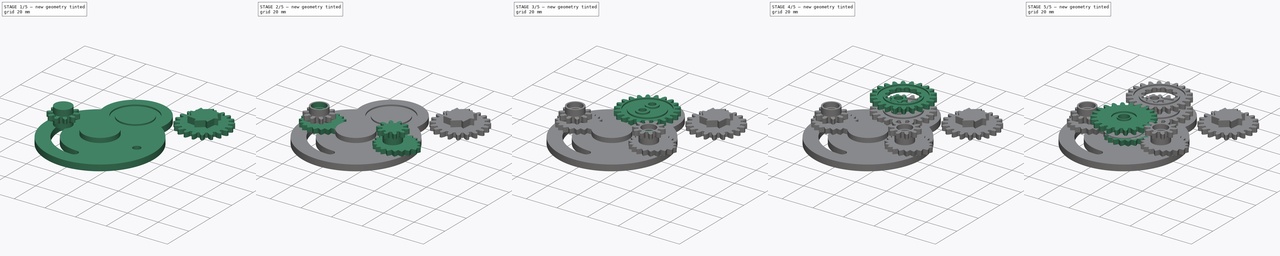
[diagram: build sequence overview — one tinted view per stage of 5, left to right]
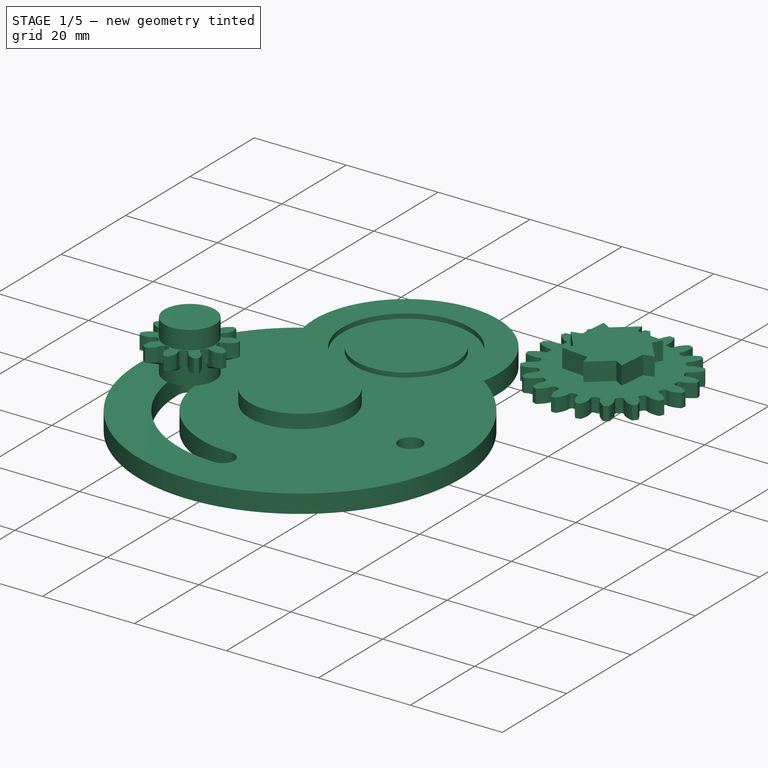
[diagram: stage 1 of 5 — iso view after this stage's code; geometry added in this stage tinted green]
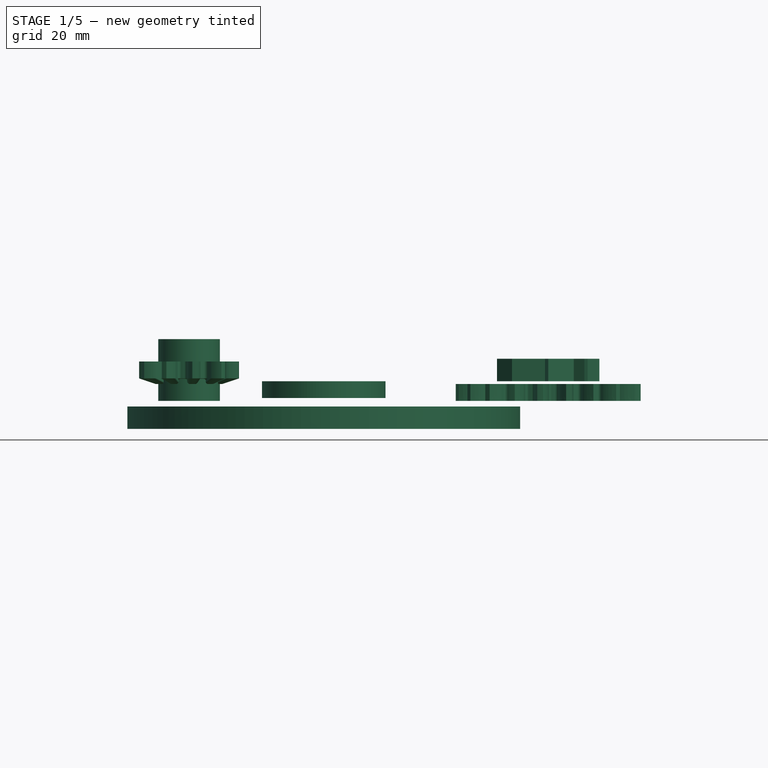
[diagram: stage 1 of 5 — front view after this stage's code; geometry added in this stage tinted green]
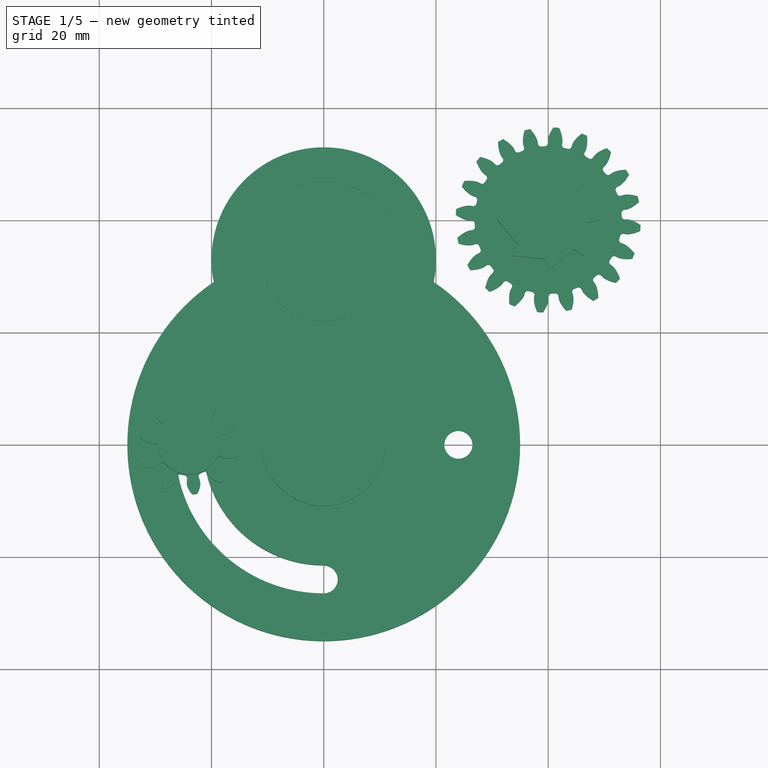
[diagram: stage 1 of 5 — top view after this stage's code; geometry added in this stage tinted green]
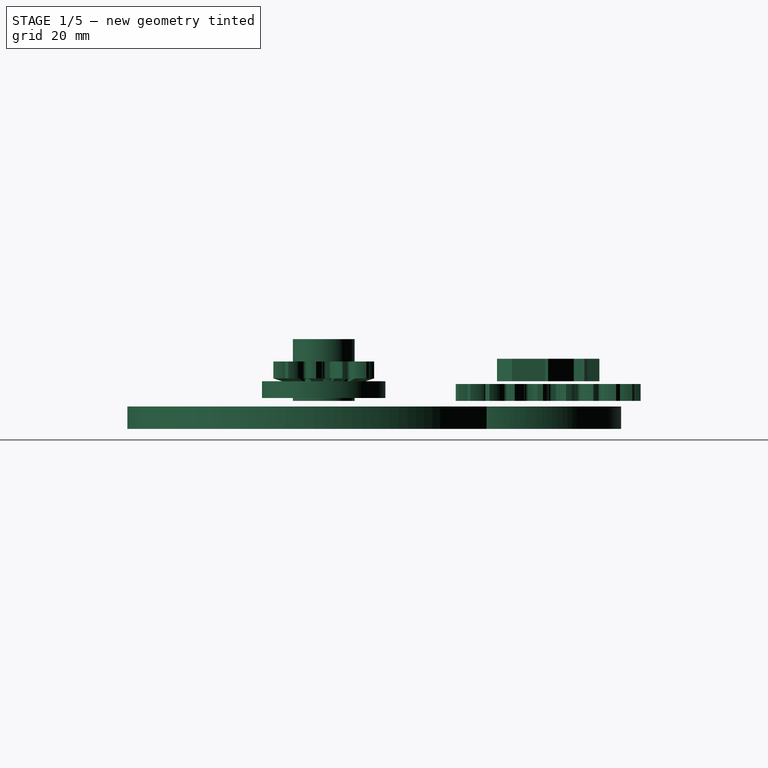
[diagram: stage 1 of 5 — right view after this stage's code; geometry added in this stage tinted green]
FCSTD DOCUMENT  (FreeCAD 0.16RUnknown)
Label: TransmissionStack
License: All rights reserved
LicenseURL: http://en.wikipedia.org/wiki/All_rights_reserved
objects: Sketcher::SketchObject×19, Part::Part2DObjectPython×15, PartDesign::Pad×15, Part::Cylinder×15, Part::MultiFuse×13, PartDesign::Revolution×10, Part::Cut×9, Part::Feature×3, Part::Loft×2, Part::FeaturePython×1
note: 127 computed .brp shape members not serialized (recipe doc carries the construction recipe); baked Part::Feature solids carry a one-line shape summary decoded from their .brp

FEATURE [Part::Cylinder] Cylinder003  label="topSpacer"
  Angle = 360
  Height = 11
  Placement = pos=(-24,0,0) rot=(0,0,1;0rad)
  Radius = 5.5
FEATURE [Part::Loft] Loft001  label="top gear"
  Closed = false
  Ruled = true
  Sections = -> [InvoluteGear008,InvoluteGear007,InvoluteGear006]
  Solid = true
FEATURE [Sketcher::SketchObject] Sketch017  label="sketch"
  Placement = pos=(0,0,-1) rot=(0,0,1;0rad)
  sketch-geometry (15):
    g0: Circle CenterX=0 CenterY=0 CenterZ=0 NormalX=0 NormalY=0 NormalZ=1 Radius=35
    g1: Circle CenterX=24 CenterY=0 CenterZ=0 NormalX=0 NormalY=0 NormalZ=1 Radius=2.5
    g2: ArcOfCircle CenterX=0 CenterY=0 CenterZ=0 NormalX=0 NormalY=0 NormalZ=1 Radius=26.5 StartAngle=3.14118 EndAngle=4.71197
    g3: ArcOfCircle CenterX=0 CenterY=0 CenterZ=0 NormalX=0 NormalY=0 NormalZ=1 Radius=21.5 StartAngle=3.14118 EndAngle=4.71197
    g4: ArcOfCircle CenterX=-24 CenterY=0.00997847 CenterZ=0 NormalX=0 NormalY=0 NormalZ=1 Radius=2.5 StartAngle=6.28277 EndAngle=9.42436
    g5: ArcOfCircle CenterX=-0.00997847 CenterY=-24 CenterZ=0 NormalX=0 NormalY=0 NormalZ=1 Radius=2.5 StartAngle=4.71197 EndAngle=7.85357
    g6: LineSegment [constr] StartX=-26.5 StartY=0.0110179 StartZ=0 EndX=-21.5 EndY=0.00893904 EndZ=0
    g7: LineSegment [constr] StartX=0 StartY=0 StartZ=0 EndX=-21.5 EndY=0.00893904 EndZ=0
    g8: LineSegment [constr] StartX=-0.0110179 StartY=-26.5 StartZ=0 EndX=-0.00893904 EndY=-21.5 EndZ=0
    g9: LineSegment [constr] StartX=-0.00893904 StartY=-21.5 StartZ=0 EndX=0 EndY=0 EndZ=0
    g10: Circle CenterX=0 CenterY=0 CenterZ=0 NormalX=0 NormalY=0 NormalZ=1 Radius=3.5
    g11: Circle [constr] CenterX=-24 CenterY=0.00997847 CenterZ=0 NormalX=0 NormalY=0 NormalZ=1 Radius=17
    g12: Circle [constr] CenterX=-0.00997847 CenterY=-24 CenterZ=0 NormalX=0 NormalY=0 NormalZ=1 Radius=17
    g13: Circle [constr] CenterX=24 CenterY=0 CenterZ=0 NormalX=0 NormalY=0 NormalZ=1 Radius=17
    g14: Circle [constr] CenterX=0 CenterY=0 CenterZ=0 NormalX=0 NormalY=0 NormalZ=1 Radius=16
  constraints (36):
    c: Coincident(g0,g-1)
    c: PointOnObject(g1,g-1)
    c: Coincident(g2,g-1)
    c: Coincident(g3,g-1)
    c: Coincident(g2,g4)
    c: Coincident(g3,g4)
    c: Coincident(g2,g5)
    c: Coincident(g3,g5)
    c: Coincident(g6,g2)
    c: Coincident(g6,g3)
    c: PointOnObject(g4,g6)
    c: Coincident(g7,g-1)
    c: Coincident(g7,g3)
    c: Coincident(g8,g9)
    c: Coincident(g9,g-1)
    c: Coincident(g8,g3)
    c: Coincident(g8,g2)
    c: PointOnObject(g5,g8)
    c: Parallel(g8,g9)
    c: Parallel(g7,g6)
    c: Radius(g4) = 2.5
    c: Distance(g-1,g4) = 24
    c: Angle(g7,g9) = 1.5708
    c: Coincident(g10,g-1)
    c: Coincident(g11,g4)
    c: Radius(g11) = 17
    c: Coincident(g12,g5)
    c: Coincident(g13,g1)
    c: Equal(g13,g12)
    c: Equal(g12,g11)
    c: DistanceX(g-1,g1) = 24
    c: Radius(g1) = 2.5
    c: Coincident(g14,g-1)
    c: Radius(g14) = 16
    c: Radius(g0) = 35
    c: Radius(g10) = 3.5
FEATURE [PartDesign::Pad] Pad  label="Main"
  Length = 4
  Length2 = 100
  Placement = pos=(0,0,-1) rot=(0,0,1;0rad)
  Reversed = true
  Sketch = -> Sketch017
  Type = 0
FEATURE [Sketcher::SketchObject] Sketch018
  Placement = pos=(0,0,-1) rot=(0,0,1;0rad)
  sketch-geometry (1):
    g0: Circle CenterX=0 CenterY=33 CenterZ=0 NormalX=0 NormalY=0 NormalZ=1 Radius=20
  constraints (3):
    c: PointOnObject(g0,g-2)
    c: DistanceY(g-1,g0) = 33
    c: Radius(g0) = 20
FEATURE [PartDesign::Pad] Pad015  label="Differential Mount"
  Length = 4
  Length2 = 100
  Placement = pos=(0,0,-1) rot=(0,0,1;0rad)
  Reversed = true
  Sketch = -> Sketch018
  Type = 0
FEATURE [Part::MultiFuse] Fusion  label="Base Plate"
  Shapes = -> [Pad015,Pad]
FEATURE [Sketcher::SketchObject] Sketch019
  Placement = pos=(0,33,-0.5) rot=(1,0,0;1.5708rad)
  sketch-geometry (16):
    g0: Circle [constr] CenterX=0 CenterY=0 CenterZ=0 NormalX=0 NormalY=0 NormalZ=1 Radius=12.4443
    g1: Circle [constr] CenterX=12.4443 CenterY=0 CenterZ=0 NormalX=0 NormalY=0 NormalZ=1 Radius=1.5
    g2: Circle [constr] CenterX=12.0827 CenterY=-2.97813 CenterZ=0 NormalX=0 NormalY=0 NormalZ=1 Radius=1.5
    g3: LineSegment [constr] StartX=0 StartY=0 StartZ=0 EndX=12.0827 EndY=-2.97813 EndZ=0
    g4: LineSegment StartX=10.9772 StartY=0.5 StartZ=0 EndX=13.9115 EndY=0.5 EndZ=0
    g5: LineSegment StartX=13.9115 StartY=0.5 StartZ=0 EndX=13.9115 EndY=1.5 EndZ=0
    g6: LineSegment StartX=13.9115 StartY=1.5 StartZ=0 EndX=10.9772 EndY=1.5 EndZ=0
    g7: LineSegment StartX=10.9772 StartY=1.5 StartZ=0 EndX=10.9772 EndY=0.5 EndZ=0
    g8: LineSegment [constr] StartX=10.9772 StartY=-0.5 StartZ=0 EndX=13.9115 EndY=-0.5 EndZ=0
    g9: LineSegment [constr] StartX=13.9115 StartY=-0.5 StartZ=0 EndX=13.9115 EndY=-1.5 EndZ=0
    g10: LineSegment [constr] StartX=13.9115 StartY=-1.5 StartZ=0 EndX=10.9772 EndY=-1.5 EndZ=0
    g11: LineSegment [constr] StartX=10.9772 StartY=-1.5 StartZ=0 EndX=10.9772 EndY=-0.5 EndZ=0
    g12: LineSegment [constr] StartX=12.4443 StartY=0 StartZ=0 EndX=12.4443 EndY=1.5 EndZ=0
    g13: Circle [constr] CenterX=12.4443 CenterY=0 CenterZ=0 NormalX=0 NormalY=0 NormalZ=1 Radius=1.55
    g14: LineSegment [constr] StartX=12.4443 StartY=0 StartZ=0 EndX=13.8894 EndY=-0.402177 EndZ=0
    g15: LineSegment [constr] StartX=13.8894 StartY=-0.402177 StartZ=0 EndX=13.9376 EndY=-0.415583 EndZ=0
  constraints (42):
    c: Coincident(g0,g-1)
    c: PointOnObject(g1,g0)
    c: PointOnObject(g2,g0)
    c: Tangent(g1,g2)
    c: Equal(g1,g2)
    c: Coincident(g3,g-1)
    c: Coincident(g3,g2)
    c: Angle(g3,g-1) = 0.241661
    c: Radius(g1) = 1.5
    c: PointOnObject(g1,g-1)
    c: Horizontal(g4)
    c: Coincident(g4,g5)
    c: Vertical(g5)
    c: Coincident(g5,g6)
    c: Coincident(g6,g7)
    c: Coincident(g7,g4)
    c: Vertical(g7)
    c: Horizontal(g6)
    c: Coincident(g8,g9)
    c: Coincident(g9,g10)
    c: Coincident(g10,g11)
    c: Coincident(g11,g8)
    c: Horizontal(g8)
    c: Horizontal(g10)
    c: Vertical(g9)
    c: Vertical(g11)
    c: Symmetric(g8,g4,g-1)
    c: DistanceY(g8,g4) = 1
    c: Coincident(g12,g1)
    c: PointOnObject(g12,g6)
    c: Symmetric(g6,g5,g12)
    c: Equal(g4,g8)
    c: Equal(g5,g9)
    c: DistanceY(g5,g5) = 1
    c: Coincident(g13,g1)
    c: Coincident(g14,g1)
    c: Coincident(g14,g15)
    c: PointOnObject(g15,g13)
    c: PointOnObject(g14,g1)
    c: Parallel(g15,g14)
    c: Distance(g15) = 0.05
    c: PointOnObject(g4,g13)
FEATURE [Sketcher::SketchObject] Sketch020
  Placement = pos=(0,33,-0.5) rot=(1,0,0;1.5708rad)
  sketch-geometry (16):
    g0: Circle [constr] CenterX=0 CenterY=0 CenterZ=0 NormalX=0 NormalY=0 NormalZ=1 Radius=12.4443
    g1: Circle [constr] CenterX=12.4443 CenterY=0 CenterZ=0 NormalX=0 NormalY=0 NormalZ=1 Radius=1.5
    g2: Circle [constr] CenterX=12.0827 CenterY=-2.97813 CenterZ=0 NormalX=0 NormalY=0 NormalZ=1 Radius=1.5
    g3: LineSegment [constr] StartX=0 StartY=0 StartZ=0 EndX=12.0827 EndY=-2.97813 EndZ=0
    g4: LineSegment [constr] StartX=10.9772 StartY=0.5 StartZ=0 EndX=13.9115 EndY=0.5 EndZ=0
    g5: LineSegment [constr] StartX=13.9115 StartY=0.5 StartZ=0 EndX=13.9115 EndY=1.5 EndZ=0
    g6: LineSegment [constr] StartX=13.9115 StartY=1.5 StartZ=0 EndX=10.9772 EndY=1.5 EndZ=0
    g7: LineSegment [constr] StartX=10.9772 StartY=1.5 StartZ=0 EndX=10.9772 EndY=0.5 EndZ=0
    g8: LineSegment StartX=10.9772 StartY=-0.5 StartZ=0 EndX=13.9115 EndY=-0.5 EndZ=0
    g9: LineSegment StartX=13.9115 StartY=-0.5 StartZ=0 EndX=13.9115 EndY=-1.5 EndZ=0
    g10: LineSegment StartX=13.9115 StartY=-1.5 StartZ=0 EndX=10.9772 EndY=-1.5 EndZ=0
    g11: LineSegment StartX=10.9772 StartY=-1.5 StartZ=0 EndX=10.9772 EndY=-0.5 EndZ=0
    g12: LineSegment [constr] StartX=12.4443 StartY=0 StartZ=0 EndX=12.4443 EndY=1.5 EndZ=0
    g13: Circle [constr] CenterX=12.4443 CenterY=0 CenterZ=0 NormalX=0 NormalY=0 NormalZ=1 Radius=1.55
    g14: LineSegment [constr] StartX=12.4443 StartY=0 StartZ=0 EndX=13.8894 EndY=-0.402179 EndZ=0
    g15: LineSegment [constr] StartX=13.8894 StartY=-0.402179 StartZ=0 EndX=13.9376 EndY=-0.415585 EndZ=0
  constraints (42):
    c: Coincident(g0,g-1)
    c: PointOnObject(g1,g0)
    c: PointOnObject(g2,g0)
    c: Tangent(g1,g2)
    c: Equal(g1,g2)
    c: Coincident(g3,g-1)
    c: Coincident(g3,g2)
    c: Angle(g3,g-1) = 0.241661
    c: Radius(g1) = 1.5
    c: PointOnObject(g1,g-1)
    c: Horizontal(g4)
    c: Coincident(g4,g5)
    c: Vertical(g5)
    c: Coincident(g5,g6)
    c: Coincident(g6,g7)
    c: Coincident(g7,g4)
    c: Vertical(g7)
    c: Horizontal(g6)
    c: Coincident(g8,g9)
    c: Coincident(g9,g10)
    c: Coincident(g10,g11)
    c: Coincident(g11,g8)
    c: Horizontal(g8)
    c: Horizontal(g10)
    c: Vertical(g9)
    c: Vertical(g11)
    c: Symmetric(g8,g4,g-1)
    c: DistanceY(g8,g4) = 1
    c: Coincident(g12,g1)
    c: PointOnObject(g12,g6)
    c: Symmetric(g6,g5,g12)
    c: Equal(g4,g8)
    c: Equal(g5,g9)
    c: DistanceY(g5,g5) = 1
    c: Coincident(g13,g1)
    c: Coincident(g14,g1)
    c: Coincident(g14,g15)
    c: PointOnObject(g15,g13)
    c: PointOnObject(g14,g1)
    c: Parallel(g15,g14)
    c: Distance(g15) = 0.05
    c: PointOnObject(g4,g13)
FEATURE [PartDesign::Revolution] Revolution008  label="bearing race - differential"
  Angle = 360
  Axis = (0,0,1)
  Base = (0,33,-0.5)
  Placement = pos=(0,33,-0.5) rot=(1,0,0;1.5708rad)
  ReferenceAxis = -> Sketch020 [V_Axis]
  Reversed = true
  Sketch = -> Sketch020
FEATURE [Sketcher::SketchObject] Sketch021
  Placement = pos=(0,0,-0.5) rot=(1,0,0;1.5708rad)
  sketch-geometry (16):
    g0: Circle [constr] CenterX=0 CenterY=0 CenterZ=0 NormalX=0 NormalY=0 NormalZ=1 Radius=5.3242
    g1: Circle [constr] CenterX=5.3242 CenterY=0 CenterZ=0 NormalX=0 NormalY=0 NormalZ=1 Radius=1.5
    g2: Circle [constr] CenterX=4.479 CenterY=-2.87848 CenterZ=0 NormalX=0 NormalY=0 NormalZ=1 Radius=1.5
    g3: LineSegment [constr] StartX=0 StartY=0 StartZ=0 EndX=4.479 EndY=-2.87848 EndZ=0
    g4: LineSegment [constr] StartX=3.85706 StartY=0.5 StartZ=0 EndX=6.79134 EndY=0.5 EndZ=0
    g5: LineSegment [constr] StartX=6.79134 StartY=0.5 StartZ=0 EndX=6.79134 EndY=1.5 EndZ=0
    g6: LineSegment [constr] StartX=6.79134 StartY=1.5 StartZ=0 EndX=3.85706 EndY=1.5 EndZ=0
    g7: LineSegment [constr] StartX=3.85706 StartY=1.5 StartZ=0 EndX=3.85706 EndY=0.5 EndZ=0
    g8: LineSegment StartX=3.85706 StartY=-0.5 StartZ=0 EndX=6.79134 EndY=-0.5 EndZ=0
    g9: LineSegment StartX=6.79134 StartY=-0.5 StartZ=0 EndX=6.79134 EndY=-1.5 EndZ=0
    g10: LineSegment StartX=6.79134 StartY=-1.5 StartZ=0 EndX=3.85706 EndY=-1.5 EndZ=0
    g11: LineSegment StartX=3.85706 StartY=-1.5 StartZ=0 EndX=3.85706 EndY=-0.5 EndZ=0
    g12: LineSegment [constr] StartX=5.3242 StartY=0 StartZ=0 EndX=5.3242 EndY=1.5 EndZ=0
    g13: Circle [constr] CenterX=5.3242 CenterY=0 CenterZ=0 NormalX=0 NormalY=0 NormalZ=1 Radius=1.55
    g14: LineSegment [constr] StartX=5.3242 StartY=0 StartZ=0 EndX=6.76928 EndY=-0.402153 EndZ=0
    g15: LineSegment [constr] StartX=6.76928 StartY=-0.402153 StartZ=0 EndX=6.81745 EndY=-0.415558 EndZ=0
  constraints (42):
    c: Coincident(g0,g-1)
    c: PointOnObject(g1,g0)
    c: PointOnObject(g2,g0)
    c: Tangent(g1,g2)
    c: Equal(g1,g2)
    c: Coincident(g3,g-1)
    c: Coincident(g3,g2)
    c: Angle(g3,g-1) = 0.571199
    c: Radius(g1) = 1.5
    c: PointOnObject(g1,g-1)
    c: Horizontal(g4)
    c: Coincident(g4,g5)
    c: Vertical(g5)
    c: Coincident(g5,g6)
    c: Coincident(g6,g7)
    c: Coincident(g7,g4)
    c: Vertical(g7)
    c: Horizontal(g6)
    c: Coincident(g8,g9)
    c: Coincident(g9,g10)
    c: Coincident(g10,g11)
    c: Coincident(g11,g8)
    c: Horizontal(g8)
    c: Horizontal(g10)
    c: Vertical(g9)
    c: Vertical(g11)
    c: Symmetric(g8,g4,g-1)
    c: DistanceY(g8,g4) = 1
    c: Coincident(g12,g1)
    c: PointOnObject(g12,g6)
    c: Symmetric(g6,g5,g12)
    c: Equal(g4,g8)
    c: Equal(g5,g9)
    c: DistanceY(g5,g5) = 1
    c: Coincident(g13,g1)
    c: Coincident(g14,g1)
    c: Coincident(g14,g15)
    c: PointOnObject(g15,g13)
    c: PointOnObject(g14,g1)
    c: Parallel(g15,g14)
    c: Distance(g15) = 0.05
    c: PointOnObject(g4,g13)
FEATURE [PartDesign::Revolution] Revolution009  label="bearing race - center"
  Angle = 360
  Axis = (0,0,1)
  Base = (0,0,-0.5)
  Placement = pos=(0,0,-0.5) rot=(1,0,0;1.5708rad)
  ReferenceAxis = -> Sketch021 [V_Axis]
  Reversed = true
  Sketch = -> Sketch021
FEATURE [Part::MultiFuse] Fusion015  label="bearing races"
  Shapes = -> [Revolution009,Revolution008]
FEATURE [Part::Cut] Cut011002005
  Base = -> Fusion
  Tool = -> Fusion015
FEATURE [Sketcher::SketchObject] Sketch022
  sketch-geometry (1):
    g0: Circle CenterX=29.167 CenterY=38.7864 CenterZ=0 NormalX=0 NormalY=0 NormalZ=1 Radius=11
  constraints (1):
    c: Radius(g0) = 11
FEATURE [Sketcher::SketchObject] Sketch023
  sketch-geometry (7):
    g0: Circle [constr] CenterX=0 CenterY=0 CenterZ=0 NormalX=0 NormalY=0 NormalZ=1 Radius=11
    g1: Circle [constr] CenterX=4.96228 CenterY=8.10097 CenterZ=0 NormalX=0 NormalY=0 NormalZ=1 Radius=1.5
    g2: LineSegment StartX=0 StartY=9.12048 StartZ=0 EndX=0.572441 EndY=7.02119 EndZ=0
    g3: LineSegment StartX=0.572441 StartY=7.02119 StartZ=0 EndX=6.44915 EndY=6.44915 EndZ=0
    g4: LineSegment StartX=6.44915 StartY=6.44915 StartZ=0 EndX=0 EndY=0 EndZ=0
    g5: LineSegment StartX=0 StartY=0 StartZ=0 EndX=0 EndY=9.12048 EndZ=0
    g6: ArcOfCircle [constr] CenterX=0 CenterY=0 CenterZ=0 NormalX=0 NormalY=0 NormalZ=1 Radius=9.12048 StartAngle=0.785398 EndAngle=1.5708
  constraints (15):
    c: Coincident(g0,g-1)
    c: Radius(g1) = 1.5
    c: PointOnObject(g2,g-2)
    c: Coincident(g2,g3)
    c: Coincident(g3,g4)
    c: Coincident(g4,g-1)
    c: Coincident(g4,g5)
    c: Angle(g4,g5) = 0.785398
    c: Coincident(g6,g-1)
    c: Coincident(g6,g3)
    c: Coincident(g5,g6)
    c: Coincident(g5,g2)
    c: Radius(g0) = 11
    c: Tangent(g1,g0)
    c: Tangent(g3,g1)
FEATURE [PartDesign::Pad] Pad016
  Length = 4
  Length2 = 100
  Sketch = -> Sketch023
  Type = 0
FEATURE [Part::FeaturePython] Array  # Draft array (typed FeaturePython)
  Angle = 360
  ArrayType = 1
  Axis = (0,0,1)
  Base = -> Pad016
  Center = (0,0,0)
  Fuse = false
  IntervalAxis = (0,0,0)
  IntervalX = (1,0,0)
  IntervalY = (0,1,0)
  IntervalZ = (0,0,0)
  NumberPolar = 8
  NumberX = 2
  NumberY = 2
  NumberZ = 1
  Placement = pos=(40,40,3.5) rot=(0,0,1;0rad)
FEATURE [Part::Part2DObjectPython] InvoluteGear013  # Draft 2D object (typed FeaturePython)
  ExternalGear = true
  HighPrecision = true
  Modules = 1.5
  NumberOfTeeth = 20
  Placement = pos=(40,40,0) rot=(0,0,-1;0.401426rad)
  PressureAngle = 20
FEATURE [Sketcher::SketchObject] Sketch024
  Placement = pos=(0,0,0.5) rot=(0,0,1;0rad)
  sketch-geometry (1):
    g0: Circle CenterX=0 CenterY=0 CenterZ=0 NormalX=0 NormalY=0 NormalZ=1 Radius=11
  constraints (2):
    c: Coincident(g0,g-1)
    c: Radius(g0) = 11
FEATURE [PartDesign::Pad] Pad017
  Length = 3
  Length2 = 100
  Placement = pos=(40,40,0) rot=(0,0,-1;0.401426rad)
  Sketch = -> InvoluteGear013
  Type = 0
FEATURE [PartDesign::Pad] Pad018
  Length = 3
  Length2 = 100
  Placement = pos=(0,0,0.5) rot=(0,0,1;0rad)
  Sketch = -> Sketch024
  Type = 0
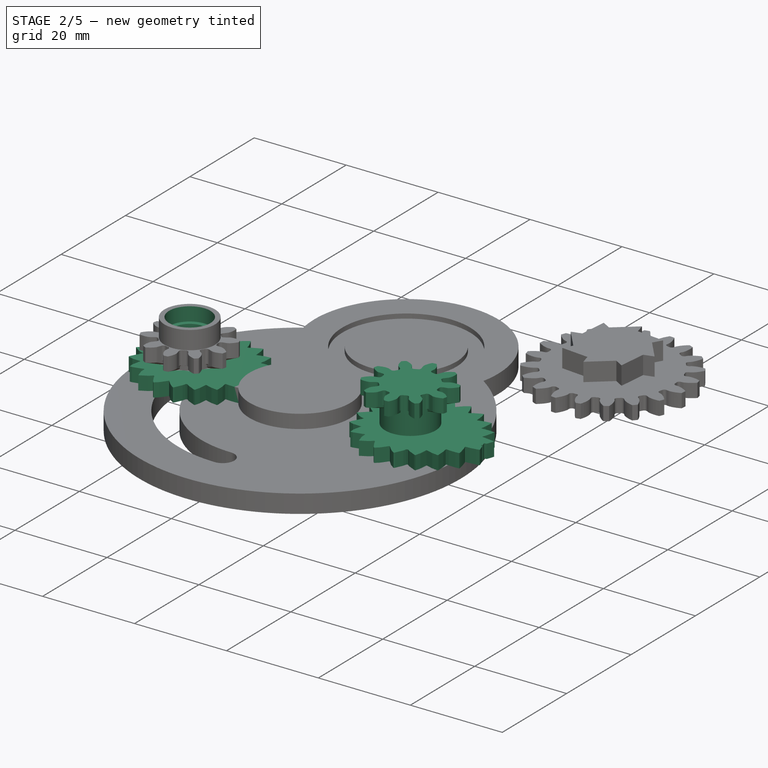
[diagram: stage 2 of 5 — iso view after this stage's code; geometry added in this stage tinted green]
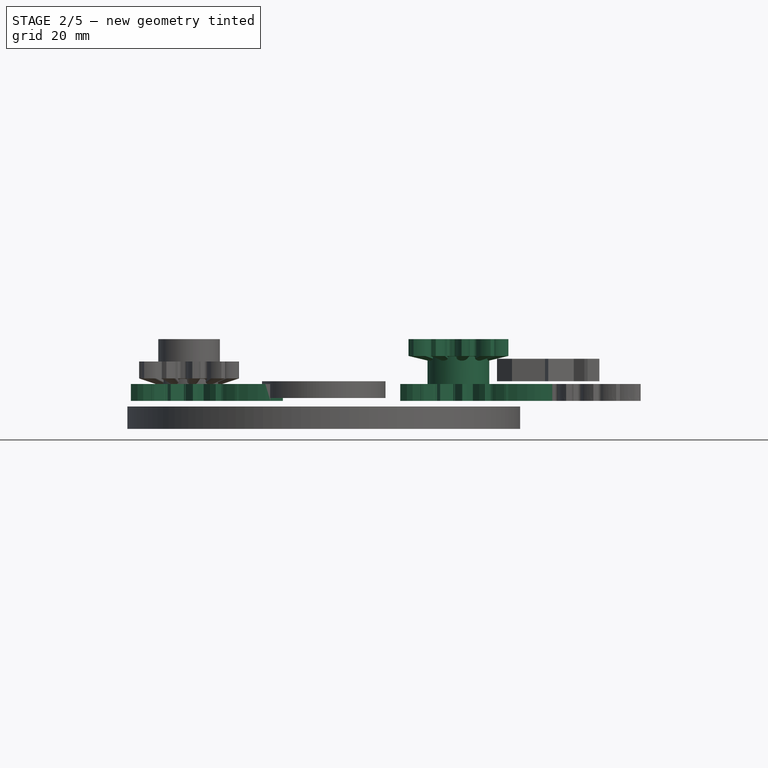
[diagram: stage 2 of 5 — front view after this stage's code; geometry added in this stage tinted green]
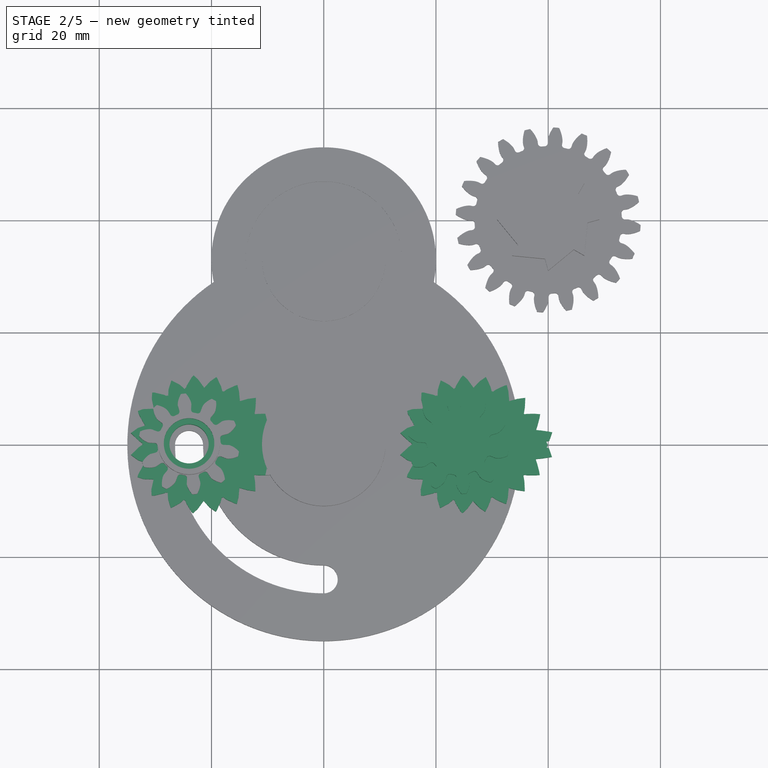
[diagram: stage 2 of 5 — top view after this stage's code; geometry added in this stage tinted green]
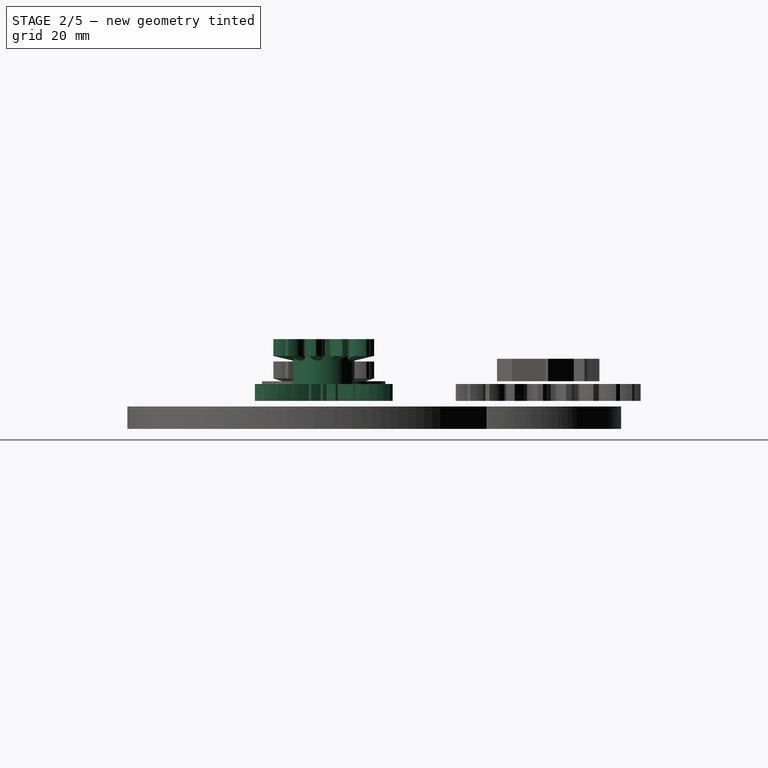
[diagram: stage 2 of 5 — right view after this stage's code; geometry added in this stage tinted green]
FEATURE [Part::Part2DObjectPython] DWire002  label="g1base"  # Draft 2D object (typed FeaturePython)
  ChamferSize = 0
  Closed = true
  End = (40.7092,2.14552,0)
  FilletRadius = 0
  Length = 116.74
  MakeFace = true
  Placement = pos=(24,0,0) rot=(0,0,1;0rad)
  Points = (141) [(16.719,2.12868,0),(16.7092,2.14552,0),(15.8889,2.29087,0),(14.6751,2.46439,0),(13.876,2.52602,0),(13.8894,2.57671,0),(13.8323,2.58486,0),+134 more]
  Start = (40.719,2.12868,0)
  Subdivisions = 0
FEATURE [Part::Part2DObjectPython] InvoluteGear003  label="g1base2"  # Draft 2D object (typed FeaturePython)
  ExternalGear = true
  HighPrecision = true
  Modules = 0.8
  NumberOfTeeth = 10
  Placement = pos=(24,0,7) rot=(0,0,1;0.427606rad)
  PressureAngle = 20
FEATURE [Part::Part2DObjectPython] InvoluteGear004  label="g1top2"  # Draft 2D object (typed FeaturePython)
  ExternalGear = true
  HighPrecision = true
  Modules = 1.5
  NumberOfTeeth = 10
  Placement = pos=(24,0,11) rot=(0,0,1;0.427606rad)
  PressureAngle = 20
FEATURE [Part::Part2DObjectPython] DWire003  label="g2base"  # Draft 2D object (typed FeaturePython)
  ChamferSize = 0
  Closed = true
  End = (-7.29077,2.14552,0)
  FilletRadius = 0
  Length = 116.74
  MakeFace = true
  Placement = pos=(-24,0,0) rot=(0,0,1;0rad)
  Points = (141) [(16.719,2.12868,0),(16.7092,2.14552,0),(15.8889,2.29087,0),(14.6751,2.46439,0),(13.876,2.52602,0),(13.8894,2.57671,0),(13.8323,2.58486,0),+134 more]
  Start = (-7.28098,2.12868,0)
  Subdivisions = 0
FEATURE [Part::Part2DObjectPython] InvoluteGear005  label="g1base2mid"  # Draft 2D object (typed FeaturePython)
  ExternalGear = true
  HighPrecision = true
  Modules = 1.5
  NumberOfTeeth = 10
  Placement = pos=(24,0,8) rot=(0,0,1;0.427606rad)
  PressureAngle = 20
FEATURE [PartDesign::Pad] Pad005  label="bottomgear"
  Length = 3
  Length2 = 100
  Placement = pos=(24,0,0) rot=(0,0,1;0rad)
  Sketch = -> DWire002
  Type = 0
FEATURE [Part::Cylinder] Cylinder  label="spacer"
  Angle = 360
  Height = 10
  Placement = pos=(24,0,0) rot=(0,0,1;0rad)
  Radius = 5.5
FEATURE [PartDesign::Pad] Pad006  label="bottogear"
  Length = 3
  Length2 = 100
  Placement = pos=(-24,0,0) rot=(0,0,1;0rad)
  Sketch = -> DWire003
  Type = 0
FEATURE [Part::Cylinder] Cylinder002  label="axleCutout"
  Angle = 360
  Height = 20
  Placement = pos=(-24,0,0) rot=(0,0,1;0rad)
  Radius = 3.5
FEATURE [Part::Cylinder] Cylinder004  label="bearingCutoutTop"
  Angle = 360
  Height = 3
  Placement = pos=(-24,0,8) rot=(0,0,1;0rad)
  Radius = 4.5
FEATURE [Part::Cylinder] Cylinder005  label="bearingCutoutBot"
  Angle = 360
  Height = 3
  Placement = pos=(-24,0,0) rot=(0,0,1;0rad)
  Radius = 4.5
FEATURE [Part::MultiFuse] Fusion004  label="cutouts"
  Shapes = -> [Cylinder005,Cylinder004,Cylinder002]
FEATURE [Part::Cylinder] Cylinder006  label="bearingCutoutBot"
  Angle = 360
  Height = 3
  Placement = pos=(24,0,0) rot=(0,0,1;0rad)
  Radius = 4.5
FEATURE [Part::Cylinder] Cylinder007  label="bearingCutoutTop"
  Angle = 360
  Height = 3
  Placement = pos=(24,0,8) rot=(0,0,1;0rad)
  Radius = 4.5
FEATURE [Part::Feature] Cut010001  label="center transfer gear"
  Placement = pos=(0,0,-4) rot=(0,0,1;0.139626rad)
  shape: bbox 35.99 x 35.94 x 3 mm, 231 faces (baked)
FEATURE [Part::Loft] Loft
  Closed = false
  Ruled = true
  Sections = -> [InvoluteGear003,InvoluteGear005,InvoluteGear004]
  Solid = true
FEATURE [Part::MultiFuse] Fusion013  label="base"
  Shapes = -> [Loft,Cylinder,Pad005]
FEATURE [Part::MultiFuse] Fusion014  label="base"
  Shapes = -> [Loft001,Pad006,Cylinder003]
FEATURE [Part::Cut] Cut011002004  label="Variable Gear Stack (short)"
  Base = -> Fusion014
  Tool = -> Fusion004
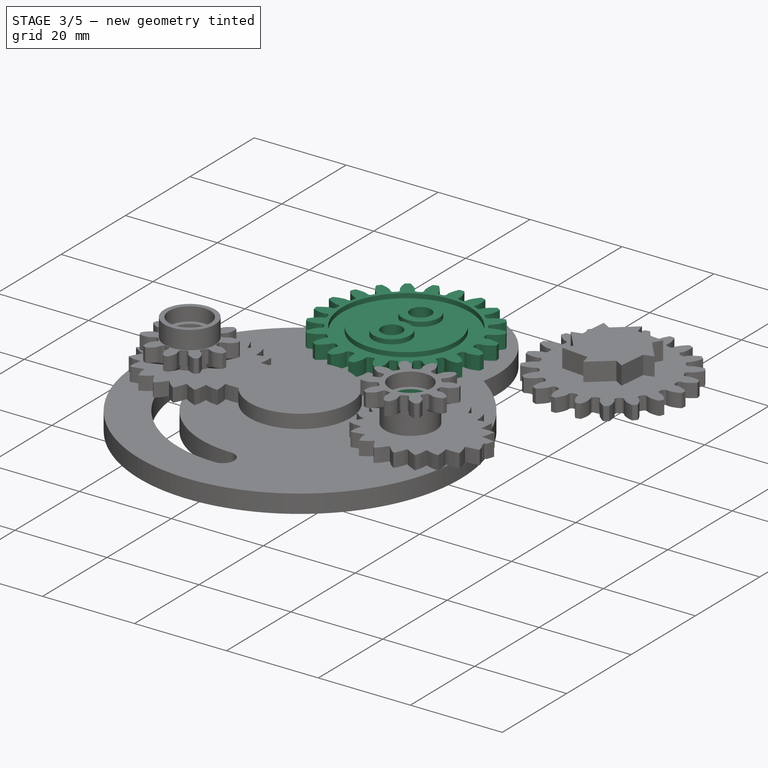
[diagram: stage 3 of 5 — iso view after this stage's code; geometry added in this stage tinted green]
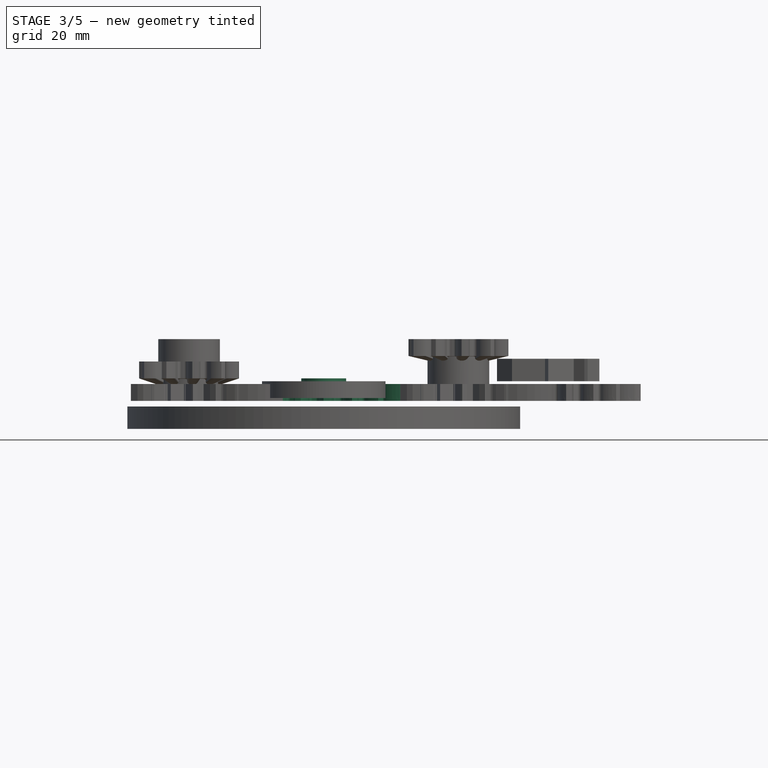
[diagram: stage 3 of 5 — front view after this stage's code; geometry added in this stage tinted green]
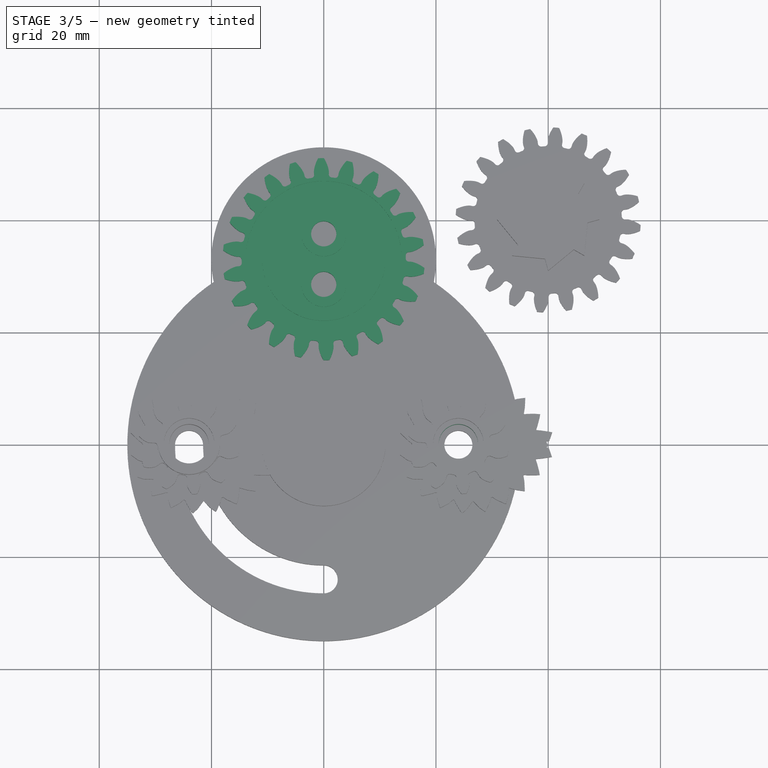
[diagram: stage 3 of 5 — top view after this stage's code; geometry added in this stage tinted green]
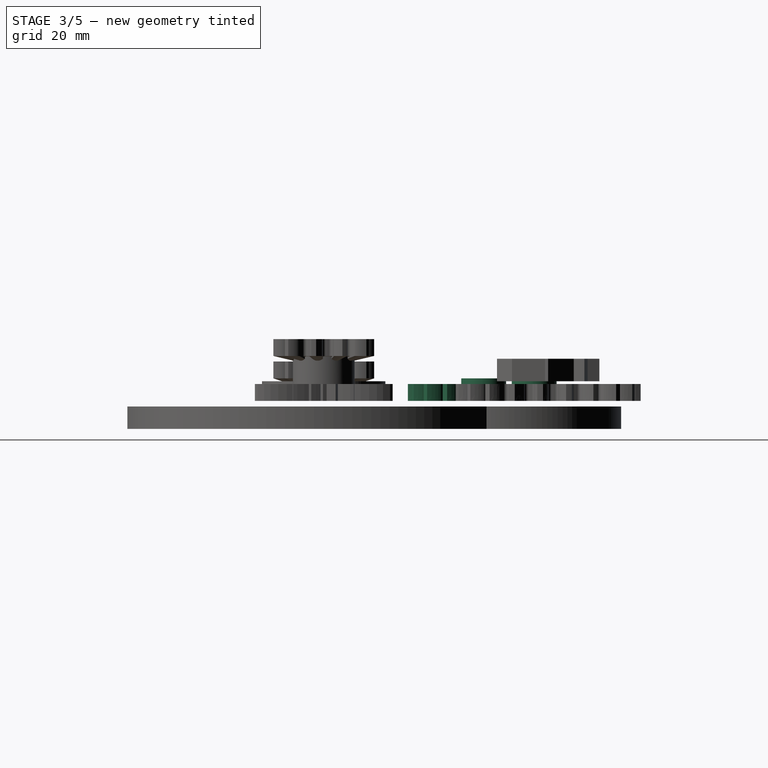
[diagram: stage 3 of 5 — right view after this stage's code; geometry added in this stage tinted green]
FEATURE [Part::Part2DObjectPython] InvoluteGear006  label="g3top"  # Draft 2D object (typed FeaturePython)
  ExternalGear = true
  HighPrecision = true
  Modules = 1.5
  NumberOfTeeth = 10
  Placement = pos=(-24,0,7) rot=(0,0,1;0.427606rad)
  PressureAngle = 20
FEATURE [Part::Part2DObjectPython] InvoluteGear007  label="g3mid"  # Draft 2D object (typed FeaturePython)
  ExternalGear = true
  HighPrecision = true
  Modules = 1.5
  NumberOfTeeth = 10
  Placement = pos=(-24,0,4) rot=(0,0,1;0.427606rad)
  PressureAngle = 20
FEATURE [Part::Part2DObjectPython] InvoluteGear008  label="g3small"  # Draft 2D object (typed FeaturePython)
  ExternalGear = true
  HighPrecision = true
  Modules = 1
  NumberOfTeeth = 10
  Placement = pos=(-24,0,3) rot=(0,0,1;0.427606rad)
  PressureAngle = 20
FEATURE [Part::Cylinder] Cylinder001  label="axleCutout"
  Angle = 360
  Height = 20
  Placement = pos=(24,0,0) rot=(0,0,1;0rad)
  Radius = 3.5
FEATURE [Part::MultiFuse] Fusion006  label="cutouts"
  Shapes = -> [Cylinder007,Cylinder006,Cylinder001]
FEATURE [Part::Feature] Cut011002001  label="Differential Planet Gear"
  Placement = pos=(0,37.5,15) rot=(1,0,0;3.14159rad)
  shape: bbox 9.837 x 9.837 x 7 mm, 7 faces (baked)
FEATURE [Part::Part2DObjectPython] InvoluteGear012  # Draft 2D object (typed FeaturePython)
  ExternalGear = true
  HighPrecision = true
  Modules = 1.5
  NumberOfTeeth = 22
  Placement = pos=(0,0,0) rot=(0,0,-1;0.401426rad)
  PressureAngle = 20
FEATURE [Part::Cylinder] Cylinder014  label="spacer"
  Angle = 360
  Height = 4
  Placement = pos=(0,-4.5,0) rot=(0,0,1;0rad)
  Radius = 4
FEATURE [Part::Cylinder] Cylinder015  label="axle cutout"
  Angle = 360
  Height = 10
  Placement = pos=(0,-4.5,0) rot=(0,0,1;0rad)
  Radius = 2.25
FEATURE [Part::Cylinder] Cylinder016  label="axle cutout"
  Angle = 360
  Height = 10
  Placement = pos=(0,4.5,0) rot=(0,0,1;0rad)
  Radius = 2.25
FEATURE [PartDesign::Pad] Pad014  label="gear profile"
  Length = 3
  Length2 = 100
  Placement = pos=(0,0,0) rot=(0,0,-1;0.401426rad)
  Sketch = -> InvoluteGear012
  Type = 0
FEATURE [Sketcher::SketchObject] Sketch015
  Placement = pos=(0,0,-0.5) rot=(1,0,0;1.5708rad)
  sketch-geometry (16):
    g0: Circle [constr] CenterX=0 CenterY=0 CenterZ=0 NormalX=0 NormalY=0 NormalZ=1 Radius=12.4443
    g1: Circle [constr] CenterX=12.4443 CenterY=0 CenterZ=0 NormalX=0 NormalY=0 NormalZ=1 Radius=1.5
    g2: Circle [constr] CenterX=12.0827 CenterY=-2.97813 CenterZ=0 NormalX=0 NormalY=0 NormalZ=1 Radius=1.5
    g3: LineSegment [constr] StartX=0 StartY=0 StartZ=0 EndX=12.0827 EndY=-2.97813 EndZ=0
    g4: LineSegment StartX=10.9772 StartY=0.5 StartZ=0 EndX=13.9115 EndY=0.5 EndZ=0
    g5: LineSegment StartX=13.9115 StartY=0.5 StartZ=0 EndX=13.9115 EndY=1.5 EndZ=0
    g6: LineSegment StartX=13.9115 StartY=1.5 StartZ=0 EndX=10.9772 EndY=1.5 EndZ=0
    g7: LineSegment StartX=10.9772 StartY=1.5 StartZ=0 EndX=10.9772 EndY=0.5 EndZ=0
    g8: LineSegment [constr] StartX=10.9772 StartY=-0.5 StartZ=0 EndX=13.9115 EndY=-0.5 EndZ=0
    g9: LineSegment [constr] StartX=13.9115 StartY=-0.5 StartZ=0 EndX=13.9115 EndY=-1.5 EndZ=0
    g10: LineSegment [constr] StartX=13.9115 StartY=-1.5 StartZ=0 EndX=10.9772 EndY=-1.5 EndZ=0
    g11: LineSegment [constr] StartX=10.9772 StartY=-1.5 StartZ=0 EndX=10.9772 EndY=-0.5 EndZ=0
    g12: LineSegment [constr] StartX=12.4443 StartY=0 StartZ=0 EndX=12.4443 EndY=1.5 EndZ=0
    g13: Circle [constr] CenterX=12.4443 CenterY=0 CenterZ=0 NormalX=0 NormalY=0 NormalZ=1 Radius=1.55
    g14: LineSegment [constr] StartX=12.4443 StartY=0 StartZ=0 EndX=13.8894 EndY=-0.402177 EndZ=0
    g15: LineSegment [constr] StartX=13.8894 StartY=-0.402177 StartZ=0 EndX=13.9376 EndY=-0.415583 EndZ=0
  constraints (42):
    c: Coincident(g0,g-1)
    c: PointOnObject(g1,g0)
    c: PointOnObject(g2,g0)
    c: Tangent(g1,g2)
    c: Equal(g1,g2)
    c: Coincident(g3,g-1)
    c: Coincident(g3,g2)
    c: Angle(g3,g-1) = 0.241661
    c: Radius(g1) = 1.5
    c: PointOnObject(g1,g-1)
    c: Horizontal(g4)
    c: Coincident(g4,g5)
    c: Vertical(g5)
    c: Coincident(g5,g6)
    c: Coincident(g6,g7)
    c: Coincident(g7,g4)
    c: Vertical(g7)
    c: Horizontal(g6)
    c: Coincident(g8,g9)
    c: Coincident(g9,g10)
    c: Coincident(g10,g11)
    c: Coincident(g11,g8)
    c: Horizontal(g8)
    c: Horizontal(g10)
    c: Vertical(g9)
    c: Vertical(g11)
    c: Symmetric(g8,g4,g-1)
    c: DistanceY(g8,g4) = 1
    c: Coincident(g12,g1)
    c: PointOnObject(g12,g6)
    c: Symmetric(g6,g5,g12)
    c: Equal(g4,g8)
    c: Equal(g5,g9)
    c: DistanceY(g5,g5) = 1
    c: Coincident(g13,g1)
    c: Coincident(g14,g1)
    c: Coincident(g14,g15)
    c: PointOnObject(g15,g13)
    c: PointOnObject(g14,g1)
    c: Parallel(g15,g14)
    c: Distance(g15) = 0.05
    c: PointOnObject(g4,g13)
FEATURE [PartDesign::Revolution] Revolution006  label="bearing race"
  Angle = 360
  Axis = (0,0,1)
  Base = (0,0,-0.5)
  Placement = pos=(0,0,-0.5) rot=(1,0,0;1.5708rad)
  ReferenceAxis = -> Sketch015 [V_Axis]
  Reversed = true
  Sketch = -> Sketch015
FEATURE [Sketcher::SketchObject] Sketch016
  Placement = pos=(0,0,3.5) rot=(1,0,0;1.5708rad)
  sketch-geometry (16):
    g0: Circle [constr] CenterX=0 CenterY=0 CenterZ=0 NormalX=0 NormalY=0 NormalZ=1 Radius=12.4443
    g1: Circle [constr] CenterX=12.4443 CenterY=0 CenterZ=0 NormalX=0 NormalY=0 NormalZ=1 Radius=1.5
    g2: Circle [constr] CenterX=12.0827 CenterY=-2.97813 CenterZ=0 NormalX=0 NormalY=0 NormalZ=1 Radius=1.5
    g3: LineSegment [constr] StartX=0 StartY=0 StartZ=0 EndX=12.0827 EndY=-2.97813 EndZ=0
    g4: LineSegment [constr] StartX=10.9772 StartY=0.5 StartZ=0 EndX=13.9115 EndY=0.5 EndZ=0
    g5: LineSegment [constr] StartX=13.9115 StartY=0.5 StartZ=0 EndX=13.9115 EndY=1.5 EndZ=0
    g6: LineSegment [constr] StartX=13.9115 StartY=1.5 StartZ=0 EndX=10.9772 EndY=1.5 EndZ=0
    g7: LineSegment [constr] StartX=10.9772 StartY=1.5 StartZ=0 EndX=10.9772 EndY=0.5 EndZ=0
    g8: LineSegment StartX=10.9772 StartY=-0.5 StartZ=0 EndX=13.9115 EndY=-0.5 EndZ=0
    g9: LineSegment StartX=13.9115 StartY=-0.5 StartZ=0 EndX=13.9115 EndY=-1.5 EndZ=0
    g10: LineSegment StartX=13.9115 StartY=-1.5 StartZ=0 EndX=10.9772 EndY=-1.5 EndZ=0
    g11: LineSegment StartX=10.9772 StartY=-1.5 StartZ=0 EndX=10.9772 EndY=-0.5 EndZ=0
    g12: LineSegment [constr] StartX=12.4443 StartY=0 StartZ=0 EndX=12.4443 EndY=1.5 EndZ=0
    g13: Circle [constr] CenterX=12.4443 CenterY=0 CenterZ=0 NormalX=0 NormalY=0 NormalZ=1 Radius=1.55
    g14: LineSegment [constr] StartX=12.4443 StartY=0 StartZ=0 EndX=13.8894 EndY=-0.402179 EndZ=0
    g15: LineSegment [constr] StartX=13.8894 StartY=-0.402179 StartZ=0 EndX=13.9376 EndY=-0.415585 EndZ=0
  constraints (42):
    c: Coincident(g0,g-1)
    c: PointOnObject(g1,g0)
    c: PointOnObject(g2,g0)
    c: Tangent(g1,g2)
    c: Equal(g1,g2)
    c: Coincident(g3,g-1)
    c: Coincident(g3,g2)
    c: Angle(g3,g-1) = 0.241661
    c: Radius(g1) = 1.5
    c: PointOnObject(g1,g-1)
    c: Horizontal(g4)
    c: Coincident(g4,g5)
    c: Vertical(g5)
    c: Coincident(g5,g6)
    c: Coincident(g6,g7)
    c: Coincident(g7,g4)
    c: Vertical(g7)
    c: Horizontal(g6)
    c: Coincident(g8,g9)
    c: Coincident(g9,g10)
    c: Coincident(g10,g11)
    c: Coincident(g11,g8)
    c: Horizontal(g8)
    c: Horizontal(g10)
    c: Vertical(g9)
    c: Vertical(g11)
    c: Symmetric(g8,g4,g-1)
    c: DistanceY(g8,g4) = 1
    c: Coincident(g12,g1)
    c: PointOnObject(g12,g6)
    c: Symmetric(g6,g5,g12)
    c: Equal(g4,g8)
    c: Equal(g5,g9)
    c: DistanceY(g5,g5) = 1
    c: Coincident(g13,g1)
    c: Coincident(g14,g1)
    c: Coincident(g14,g15)
    c: PointOnObject(g15,g13)
    c: PointOnObject(g14,g1)
    c: Parallel(g15,g14)
    c: Distance(g15) = 0.05
    c: PointOnObject(g4,g13)
FEATURE [PartDesign::Revolution] Revolution007  label="bearing race"
  Angle = 360
  Axis = (0,0,1)
  Base = (0,0,3.5)
  Placement = pos=(0,0,3.5) rot=(1,0,0;1.5708rad)
  ReferenceAxis = -> Sketch016 [V_Axis]
  Reversed = true
  Sketch = -> Sketch016
FEATURE [Part::Cylinder] Cylinder019  label="spacer"
  Angle = 360
  Height = 4
  Placement = pos=(0,4.5,0) rot=(0,0,1;0rad)
  Radius = 4
FEATURE [Part::MultiFuse] Fusion011  label="base"
  Shapes = -> [Cylinder019,Cylinder014,Pad014]
FEATURE [Part::MultiFuse] Fusion012  label="cutouts"
  Shapes = -> [Revolution007,Revolution006,Cylinder016,Cylinder015]
FEATURE [Part::Cut] Cut011002002  label="Differential Planet Carrier"
  Base = -> Fusion011
  Placement = pos=(0,33,0) rot=(0,0,1;0rad)
  Tool = -> Fusion012
FEATURE [Part::Cut] Cut011002003  label="Variable Gear Stack (tall)"
  Base = -> Fusion013
  Tool = -> Fusion006
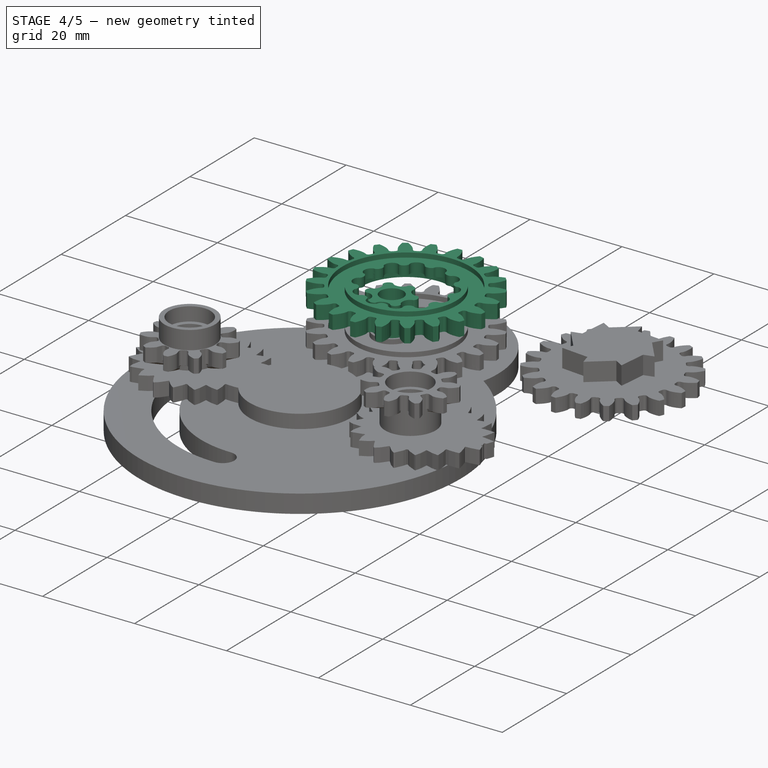
[diagram: stage 4 of 5 — iso view after this stage's code; geometry added in this stage tinted green]
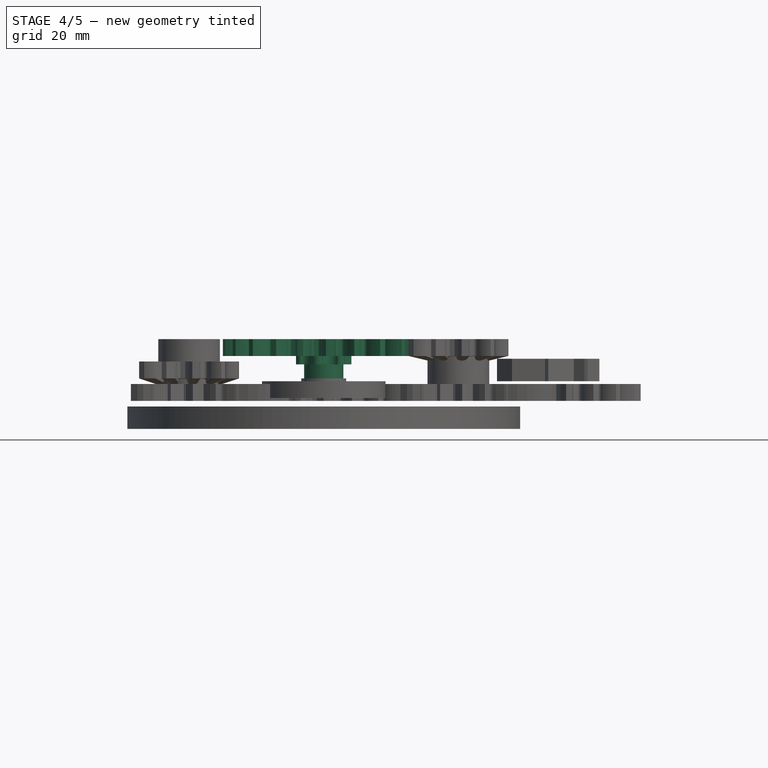
[diagram: stage 4 of 5 — front view after this stage's code; geometry added in this stage tinted green]
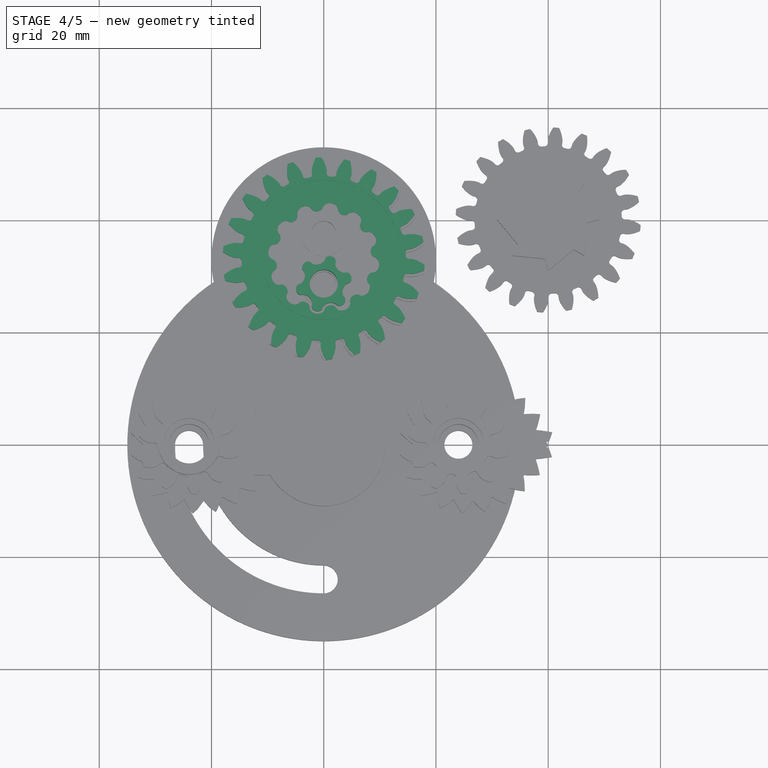
[diagram: stage 4 of 5 — top view after this stage's code; geometry added in this stage tinted green]
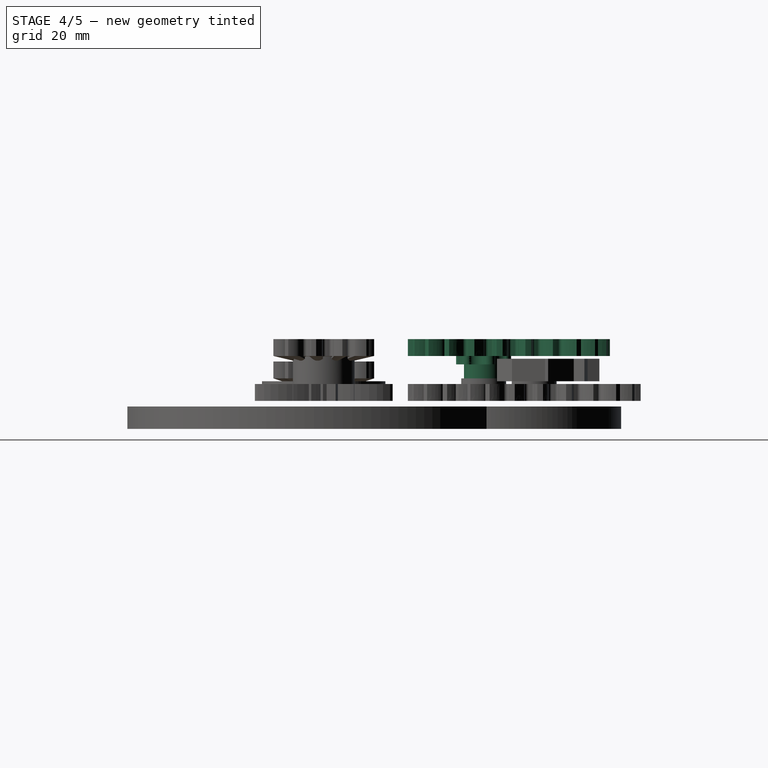
[diagram: stage 4 of 5 — right view after this stage's code; geometry added in this stage tinted green]
FEATURE [Sketcher::SketchObject] Sketch010
  Placement = pos=(0,0,-0.5) rot=(1,0,0;1.5708rad)
  sketch-geometry (16):
    g0: Circle [constr] CenterX=0 CenterY=0 CenterZ=0 NormalX=0 NormalY=0 NormalZ=1 Radius=12.4443
    g1: Circle [constr] CenterX=12.4443 CenterY=0 CenterZ=0 NormalX=0 NormalY=0 NormalZ=1 Radius=1.5
    g2: Circle [constr] CenterX=12.0827 CenterY=-2.97813 CenterZ=0 NormalX=0 NormalY=0 NormalZ=1 Radius=1.5
    g3: LineSegment [constr] StartX=0 StartY=0 StartZ=0 EndX=12.0827 EndY=-2.97813 EndZ=0
    g4: LineSegment StartX=10.9772 StartY=0.5 StartZ=0 EndX=13.9115 EndY=0.5 EndZ=0
    g5: LineSegment StartX=13.9115 StartY=0.5 StartZ=0 EndX=13.9115 EndY=1.5 EndZ=0
    g6: LineSegment StartX=13.9115 StartY=1.5 StartZ=0 EndX=10.9772 EndY=1.5 EndZ=0
    g7: LineSegment StartX=10.9772 StartY=1.5 StartZ=0 EndX=10.9772 EndY=0.5 EndZ=0
    g8: LineSegment [constr] StartX=10.9772 StartY=-0.5 StartZ=0 EndX=13.9115 EndY=-0.5 EndZ=0
    g9: LineSegment [constr] StartX=13.9115 StartY=-0.5 StartZ=0 EndX=13.9115 EndY=-1.5 EndZ=0
    g10: LineSegment [constr] StartX=13.9115 StartY=-1.5 StartZ=0 EndX=10.9772 EndY=-1.5 EndZ=0
    g11: LineSegment [constr] StartX=10.9772 StartY=-1.5 StartZ=0 EndX=10.9772 EndY=-0.5 EndZ=0
    g12: LineSegment [constr] StartX=12.4443 StartY=0 StartZ=0 EndX=12.4443 EndY=1.5 EndZ=0
    g13: Circle [constr] CenterX=12.4443 CenterY=0 CenterZ=0 NormalX=0 NormalY=0 NormalZ=1 Radius=1.55
    g14: LineSegment [constr] StartX=12.4443 StartY=0 StartZ=0 EndX=13.8894 EndY=-0.402177 EndZ=0
    g15: LineSegment [constr] StartX=13.8894 StartY=-0.402177 StartZ=0 EndX=13.9376 EndY=-0.415583 EndZ=0
  constraints (42):
    c: Coincident(g0,g-1)
    c: PointOnObject(g1,g0)
    c: PointOnObject(g2,g0)
    c: Tangent(g1,g2)
    c: Equal(g1,g2)
    c: Coincident(g3,g-1)
    c: Coincident(g3,g2)
    c: Angle(g3,g-1) = 0.241661
    c: Radius(g1) = 1.5
    c: PointOnObject(g1,g-1)
    c: Horizontal(g4)
    c: Coincident(g4,g5)
    c: Vertical(g5)
    c: Coincident(g5,g6)
    c: Coincident(g6,g7)
    c: Coincident(g7,g4)
    c: Vertical(g7)
    c: Horizontal(g6)
    c: Coincident(g8,g9)
    c: Coincident(g9,g10)
    c: Coincident(g10,g11)
    c: Coincident(g11,g8)
    c: Horizontal(g8)
    c: Horizontal(g10)
    c: Vertical(g9)
    c: Vertical(g11)
    c: Symmetric(g8,g4,g-1)
    c: DistanceY(g8,g4) = 1
    c: Coincident(g12,g1)
    c: PointOnObject(g12,g6)
    c: Symmetric(g6,g5,g12)
    c: Equal(g4,g8)
    c: Equal(g5,g9)
    c: DistanceY(g5,g5) = 1
    c: Coincident(g13,g1)
    c: Coincident(g14,g1)
    c: Coincident(g14,g15)
    c: PointOnObject(g15,g13)
    c: PointOnObject(g14,g1)
    c: Parallel(g15,g14)
    c: Distance(g15) = 0.05
    c: PointOnObject(g4,g13)
FEATURE [PartDesign::Revolution] Revolution004  label="bearing race"
  Angle = 360
  Axis = (0,0,1)
  Base = (0,0,-0.5)
  Placement = pos=(0,0,-0.5) rot=(1,0,0;1.5708rad)
  ReferenceAxis = -> Sketch010 [V_Axis]
  Reversed = true
  Sketch = -> Sketch010
FEATURE [Sketcher::SketchObject] Sketch011
  Placement = pos=(0,0,3.5) rot=(1,0,0;1.5708rad)
  sketch-geometry (16):
    g0: Circle [constr] CenterX=0 CenterY=0 CenterZ=0 NormalX=0 NormalY=0 NormalZ=1 Radius=12.4443
    g1: Circle [constr] CenterX=12.4443 CenterY=0 CenterZ=0 NormalX=0 NormalY=0 NormalZ=1 Radius=1.5
    g2: Circle [constr] CenterX=12.0827 CenterY=-2.97813 CenterZ=0 NormalX=0 NormalY=0 NormalZ=1 Radius=1.5
    g3: LineSegment [constr] StartX=0 StartY=0 StartZ=0 EndX=12.0827 EndY=-2.97813 EndZ=0
    g4: LineSegment [constr] StartX=10.9772 StartY=0.5 StartZ=0 EndX=13.9115 EndY=0.5 EndZ=0
    g5: LineSegment [constr] StartX=13.9115 StartY=0.5 StartZ=0 EndX=13.9115 EndY=1.5 EndZ=0
    g6: LineSegment [constr] StartX=13.9115 StartY=1.5 StartZ=0 EndX=10.9772 EndY=1.5 EndZ=0
    g7: LineSegment [constr] StartX=10.9772 StartY=1.5 StartZ=0 EndX=10.9772 EndY=0.5 EndZ=0
    g8: LineSegment StartX=10.9772 StartY=-0.5 StartZ=0 EndX=13.9115 EndY=-0.5 EndZ=0
    g9: LineSegment StartX=13.9115 StartY=-0.5 StartZ=0 EndX=13.9115 EndY=-1.5 EndZ=0
    g10: LineSegment StartX=13.9115 StartY=-1.5 StartZ=0 EndX=10.9772 EndY=-1.5 EndZ=0
    g11: LineSegment StartX=10.9772 StartY=-1.5 StartZ=0 EndX=10.9772 EndY=-0.5 EndZ=0
    g12: LineSegment [constr] StartX=12.4443 StartY=0 StartZ=0 EndX=12.4443 EndY=1.5 EndZ=0
    g13: Circle [constr] CenterX=12.4443 CenterY=0 CenterZ=0 NormalX=0 NormalY=0 NormalZ=1 Radius=1.55
    g14: LineSegment [constr] StartX=12.4443 StartY=0 StartZ=0 EndX=13.8894 EndY=-0.402179 EndZ=0
    g15: LineSegment [constr] StartX=13.8894 StartY=-0.402179 StartZ=0 EndX=13.9376 EndY=-0.415585 EndZ=0
  constraints (42):
    c: Coincident(g0,g-1)
    c: PointOnObject(g1,g0)
    c: PointOnObject(g2,g0)
    c: Tangent(g1,g2)
    c: Equal(g1,g2)
    c: Coincident(g3,g-1)
    c: Coincident(g3,g2)
    c: Angle(g3,g-1) = 0.241661
    c: Radius(g1) = 1.5
    c: PointOnObject(g1,g-1)
    c: Horizontal(g4)
    c: Coincident(g4,g5)
    c: Vertical(g5)
    c: Coincident(g5,g6)
    c: Coincident(g6,g7)
    c: Coincident(g7,g4)
    c: Vertical(g7)
    c: Horizontal(g6)
    c: Coincident(g8,g9)
    c: Coincident(g9,g10)
    c: Coincident(g10,g11)
    c: Coincident(g11,g8)
    c: Horizontal(g8)
    c: Horizontal(g10)
    c: Vertical(g9)
    c: Vertical(g11)
    c: Symmetric(g8,g4,g-1)
    c: DistanceY(g8,g4) = 1
    c: Coincident(g12,g1)
    c: PointOnObject(g12,g6)
    c: Symmetric(g6,g5,g12)
    c: Equal(g4,g8)
    c: Equal(g5,g9)
    c: DistanceY(g5,g5) = 1
    c: Coincident(g13,g1)
    c: Coincident(g14,g1)
    c: Coincident(g14,g15)
    c: PointOnObject(g15,g13)
    c: PointOnObject(g14,g1)
    c: Parallel(g15,g14)
    c: Distance(g15) = 0.05
    c: PointOnObject(g4,g13)
FEATURE [PartDesign::Revolution] Revolution005  label="bearing race"
  Angle = 360
  Axis = (0,0,1)
  Base = (0,0,3.5)
  Placement = pos=(0,0,3.5) rot=(1,0,0;1.5708rad)
  ReferenceAxis = -> Sketch011 [V_Axis]
  Reversed = true
  Sketch = -> Sketch011
FEATURE [PartDesign::Pad] Pad009  label="gear profile"
  Length = 3
  Length2 = 100
  Placement = pos=(0,0,0) rot=(0,0,-1;0.401426rad)
  Sketch = -> InvoluteGear010
  Type = 0
FEATURE [Part::MultiFuse] Fusion008  label="bearing races"
  Shapes = -> [Revolution004,Revolution005]
FEATURE [PartDesign::Pad] Pad010  label="inner gear profile"
  Length = 3
  Length2 = 100
  Sketch = -> BSpline
  Type = 0
FEATURE [Sketcher::SketchObject] Sketch014
  sketch-geometry (1):
    g0: Circle CenterX=0 CenterY=0 CenterZ=0 NormalX=0 NormalY=0 NormalZ=1 Radius=10
  constraints (2):
    c: Coincident(g0,g-1)
    c: Radius(g0) = 10
FEATURE [PartDesign::Pad] Pad011  label="profile cutout"
  Length = 1
  Length2 = 100
  Sketch = -> Sketch014
  Type = 0
FEATURE [Part::MultiFuse] Fusion009  label="cutouts"
  Shapes = -> [Pad011,Pad010,Fusion008]
FEATURE [Part::Cut] Cut011  label="Differential Ring Gear"
  Base = -> Pad009
  Placement = pos=(0,33,8) rot=(0,0,-1;0.261799rad)
  Tool = -> Fusion009
FEATURE [PartDesign::Pad] Pad012  label="gear profile"
  Length = 4.5
  Length2 = 100
  Placement = pos=(0,0,11) rot=(0,0,-1;0.523599rad)
  Reversed = true
  Sketch = -> BSpline002
  Type = 0
FEATURE [Part::Feature] Cut011001  label="Differential Ring Gear"
  Placement = pos=(0,33,7) rot=(1,0,0;3.14159rad)
  shape: bbox 36.02 x 36.15 x 3.147 mm, 233 faces (baked)
FEATURE [Part::Cylinder] Cylinder009  label="axle cutout"
  Angle = 360
  Height = 20
  Radius = 2.5
FEATURE [Part::Cylinder] Cylinder013  label="spacer"
  Angle = 360
  Height = 7
  Placement = pos=(0,0,4) rot=(0,0,1;0rad)
  Radius = 3.5
FEATURE [Part::MultiFuse] Fusion010
  Shapes = -> [Pad012,Cylinder013]
FEATURE [Part::Cut] Cut011002  label="Differential Planet Gear"
  Base = -> Fusion010
  Placement = pos=(0,28.5,0) rot=(0,0,-1;0.541052rad)
  Tool = -> Cylinder009
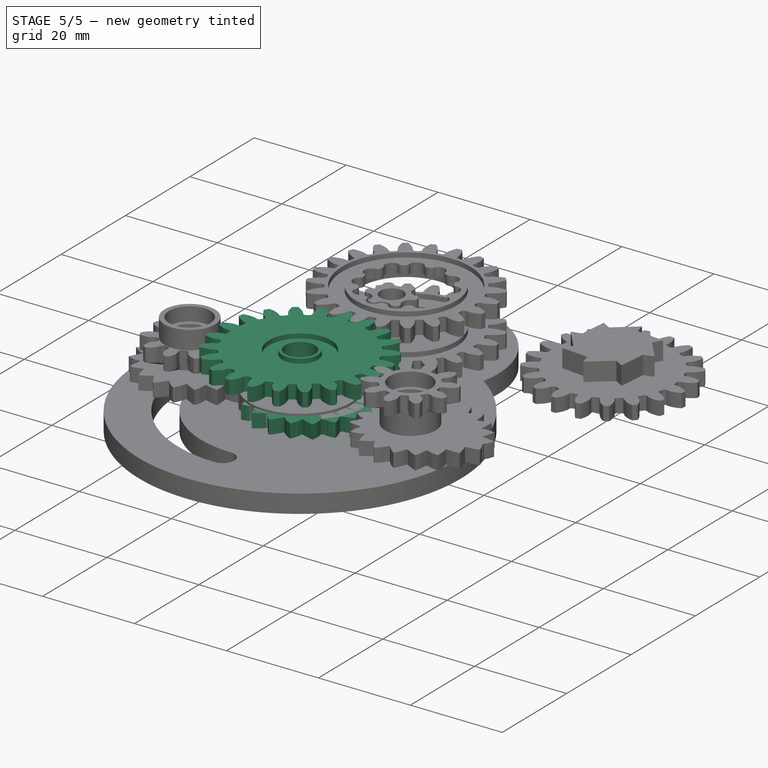
[diagram: stage 5 of 5 — iso view after this stage's code; geometry added in this stage tinted green]
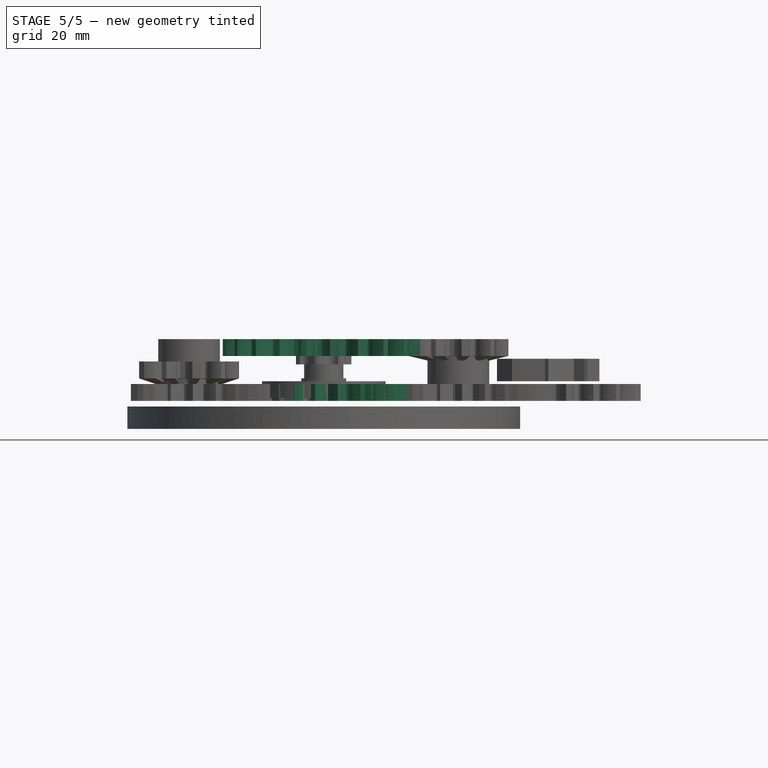
[diagram: stage 5 of 5 — front view after this stage's code; geometry added in this stage tinted green]
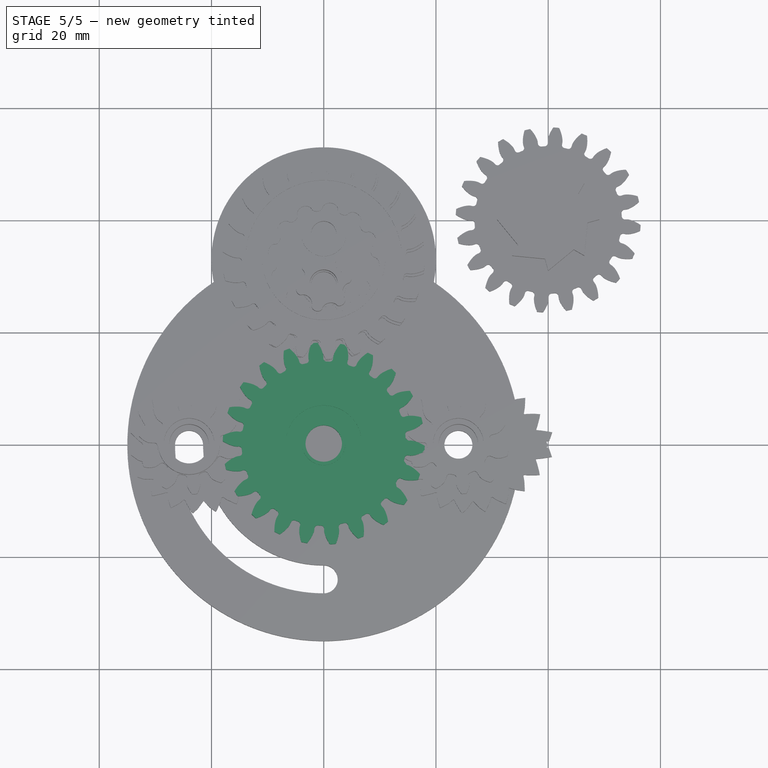
[diagram: stage 5 of 5 — top view after this stage's code; geometry added in this stage tinted green]
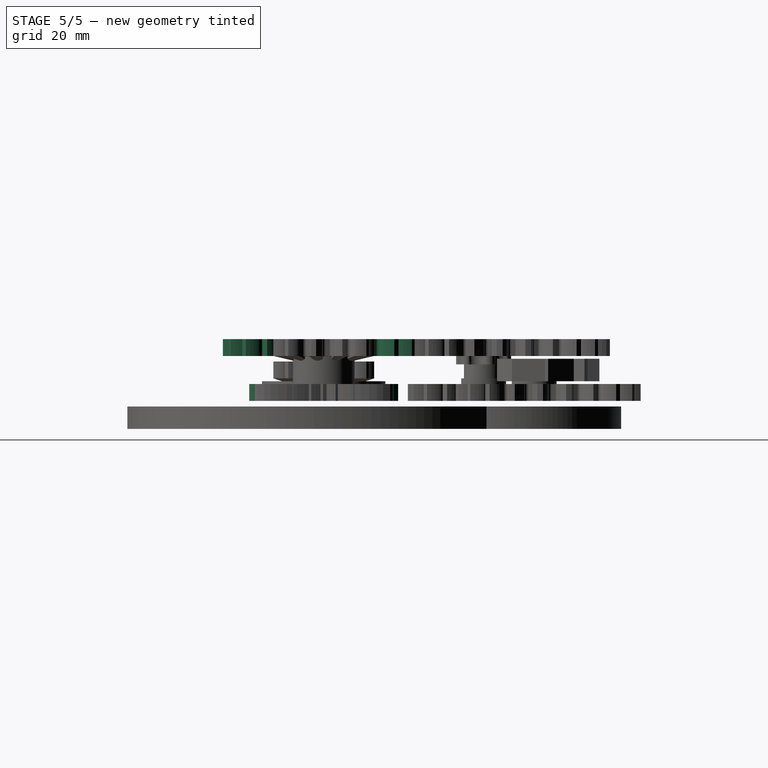
[diagram: stage 5 of 5 — right view after this stage's code; geometry added in this stage tinted green]
FEATURE [Part::Part2DObjectPython] DWire001  # Draft 2D object (typed FeaturePython)
  ChamferSize = 0
  Closed = true
  End = (12.9776,-7.52391,0)
  FilletRadius = 0
  Length = 115.99
  MakeFace = true
  Points = (347) [(12.9407,-7.5751,0),(12.9776,-7.52391,0),(12.7586,-6.44106,0),(12.4722,-5.82977,0),(12.4305,-5.55586,0),(12.1811,-4.95491,0),(12.3268,-4.87553,0),+340 more]
  Start = (12.9407,-7.5751,0)
  Subdivisions = 0
FEATURE [PartDesign::Pad] Pad001
  Length = 3
  Length2 = 100
  Sketch = -> DWire001
  Type = 0
FEATURE [Sketcher::SketchObject] Sketch
  sketch-geometry (6):
    g0: LineSegment StartX=2.12132 StartY=2.12132 StartZ=0 EndX=-2.12132 EndY=2.12132 EndZ=0
    g1: LineSegment StartX=-2.12132 StartY=2.12132 StartZ=0 EndX=-2.12132 EndY=-2.12132 EndZ=0
    g2: LineSegment StartX=-2.12132 StartY=-2.12132 StartZ=0 EndX=2.12132 EndY=-2.12132 EndZ=0
    g3: LineSegment StartX=2.12132 StartY=-2.12132 StartZ=0 EndX=2.12132 EndY=2.12132 EndZ=0
    g4: Circle [constr] CenterX=0 CenterY=0 CenterZ=0 NormalX=0 NormalY=0 NormalZ=1 Radius=3
    g5: LineSegment [constr] StartX=0 StartY=0 StartZ=0 EndX=2.12132 EndY=2.12132 EndZ=0
  constraints (16):
    c: Coincident(g0,g1)
    c: Coincident(g1,g2)
    c: Coincident(g2,g3)
    c: Coincident(g3,g0)
    c: Equal(g0,g1)
    c: Equal(g0,g2)
    c: Equal(g0,g3)
    c: PointOnObject(g0,g4)
    c: PointOnObject(g1,g4)
    c: PointOnObject(g2,g4)
    c: PointOnObject(g3,g4)
    c: Coincident(g4,g-1)
    c: Radius(g4) = 3
    c: Coincident(g5,g-1)
    c: Coincident(g5,g0)
    c: Angle(g-1,g5) = 0.785398
FEATURE [PartDesign::Pad] Pad002
  Length = 10
  Length2 = 100
  Sketch = -> Sketch
  Type = 0
FEATURE [Part::Cut] Cut
  Base = -> Pad001
  Tool = -> Pad002
FEATURE [Sketcher::SketchObject] Sketch003
  Placement = pos=(0,0,7.5) rot=(1,0,0;1.5708rad)
  sketch-geometry (16):
    g0: Circle [constr] CenterX=0 CenterY=0 CenterZ=0 NormalX=0 NormalY=0 NormalZ=1 Radius=5.3242
    g1: Circle [constr] CenterX=5.3242 CenterY=0 CenterZ=0 NormalX=0 NormalY=0 NormalZ=1 Radius=1.5
    g2: Circle [constr] CenterX=4.479 CenterY=-2.87848 CenterZ=0 NormalX=0 NormalY=0 NormalZ=1 Radius=1.5
    g3: LineSegment [constr] StartX=0 StartY=0 StartZ=0 EndX=4.479 EndY=-2.87848 EndZ=0
    g4: LineSegment StartX=3.85706 StartY=0.5 StartZ=0 EndX=6.79134 EndY=0.5 EndZ=0
    g5: LineSegment StartX=6.79134 StartY=0.5 StartZ=0 EndX=6.79134 EndY=1.5 EndZ=0
    g6: LineSegment StartX=6.79134 StartY=1.5 StartZ=0 EndX=3.85706 EndY=1.5 EndZ=0
    g7: LineSegment StartX=3.85706 StartY=1.5 StartZ=0 EndX=3.85706 EndY=0.5 EndZ=0
    g8: LineSegment [constr] StartX=3.85706 StartY=-0.5 StartZ=0 EndX=6.79134 EndY=-0.5 EndZ=0
    g9: LineSegment [constr] StartX=6.79134 StartY=-0.5 StartZ=0 EndX=6.79134 EndY=-1.5 EndZ=0
    g10: LineSegment [constr] StartX=6.79134 StartY=-1.5 StartZ=0 EndX=3.85706 EndY=-1.5 EndZ=0
    g11: LineSegment [constr] StartX=3.85706 StartY=-1.5 StartZ=0 EndX=3.85706 EndY=-0.5 EndZ=0
    g12: LineSegment [constr] StartX=5.3242 StartY=0 StartZ=0 EndX=5.3242 EndY=1.5 EndZ=0
    g13: Circle [constr] CenterX=5.3242 CenterY=0 CenterZ=0 NormalX=0 NormalY=0 NormalZ=1 Radius=1.55
    g14: LineSegment [constr] StartX=5.3242 StartY=0 StartZ=0 EndX=6.76929 EndY=-0.402135 EndZ=0
    g15: LineSegment [constr] StartX=6.76929 StartY=-0.402135 StartZ=0 EndX=6.81746 EndY=-0.415539 EndZ=0
  constraints (42):
    c: Coincident(g0,g-1)
    c: PointOnObject(g1,g0)
    c: PointOnObject(g2,g0)
    c: Tangent(g1,g2)
    c: Equal(g1,g2)
    c: Coincident(g3,g-1)
    c: Coincident(g3,g2)
    c: Angle(g3,g-1) = 0.571199
    c: Radius(g1) = 1.5
    c: PointOnObject(g1,g-1)
    c: Horizontal(g4)
    c: Coincident(g4,g5)
    c: Vertical(g5)
    c: Coincident(g5,g6)
    c: Coincident(g6,g7)
    c: Coincident(g7,g4)
    c: Vertical(g7)
    c: Horizontal(g6)
    c: Coincident(g8,g9)
    c: Coincident(g9,g10)
    c: Coincident(g10,g11)
    c: Coincident(g11,g8)
    c: Horizontal(g8)
    c: Horizontal(g10)
    c: Vertical(g9)
    c: Vertical(g11)
    c: Symmetric(g8,g4,g-1)
    c: DistanceY(g8,g4) = 1
    c: Coincident(g12,g1)
    c: PointOnObject(g12,g6)
    c: Symmetric(g6,g5,g12)
    c: Equal(g4,g8)
    c: Equal(g5,g9)
    c: DistanceY(g5,g5) = 1
    c: Coincident(g13,g1)
    c: Coincident(g14,g1)
    c: Coincident(g14,g15)
    c: PointOnObject(g15,g13)
    c: PointOnObject(g14,g1)
    c: Parallel(g15,g14)
    c: Distance(g15) = 0.05
    c: PointOnObject(g4,g13)
FEATURE [PartDesign::Revolution] Revolution  label="bearing race"
  Angle = 360
  Axis = (0,0,1)
  Base = (0,0,7.5)
  Placement = pos=(0,0,7.5) rot=(1,0,0;1.5708rad)
  ReferenceAxis = -> Sketch003 [V_Axis]
  Reversed = true
  Sketch = -> Sketch003
FEATURE [Sketcher::SketchObject] Sketch004
  Placement = pos=(0,0,11.5) rot=(1,0,0;1.5708rad)
  sketch-geometry (16):
    g0: Circle [constr] CenterX=0 CenterY=0 CenterZ=0 NormalX=0 NormalY=0 NormalZ=1 Radius=5.3242
    g1: Circle [constr] CenterX=5.3242 CenterY=0 CenterZ=0 NormalX=0 NormalY=0 NormalZ=1 Radius=1.5
    g2: Circle [constr] CenterX=4.479 CenterY=-2.87848 CenterZ=0 NormalX=0 NormalY=0 NormalZ=1 Radius=1.5
    g3: LineSegment [constr] StartX=0 StartY=0 StartZ=0 EndX=4.479 EndY=-2.87848 EndZ=0
    g4: LineSegment [constr] StartX=3.85706 StartY=0.5 StartZ=0 EndX=6.79134 EndY=0.5 EndZ=0
    g5: LineSegment [constr] StartX=6.79134 StartY=0.5 StartZ=0 EndX=6.79134 EndY=1.5 EndZ=0
    g6: LineSegment [constr] StartX=6.79134 StartY=1.5 StartZ=0 EndX=3.85706 EndY=1.5 EndZ=0
    g7: LineSegment [constr] StartX=3.85706 StartY=1.5 StartZ=0 EndX=3.85706 EndY=0.5 EndZ=0
    g8: LineSegment StartX=3.85706 StartY=-0.5 StartZ=0 EndX=6.79134 EndY=-0.5 EndZ=0
    g9: LineSegment StartX=6.79134 StartY=-0.5 StartZ=0 EndX=6.79134 EndY=-1.5 EndZ=0
    g10: LineSegment StartX=6.79134 StartY=-1.5 StartZ=0 EndX=3.85706 EndY=-1.5 EndZ=0
    g11: LineSegment StartX=3.85706 StartY=-1.5 StartZ=0 EndX=3.85706 EndY=-0.5 EndZ=0
    g12: LineSegment [constr] StartX=5.3242 StartY=0 StartZ=0 EndX=5.3242 EndY=1.5 EndZ=0
    g13: Circle [constr] CenterX=5.3242 CenterY=0 CenterZ=0 NormalX=0 NormalY=0 NormalZ=1 Radius=1.55
    g14: LineSegment [constr] StartX=5.3242 StartY=0 StartZ=0 EndX=6.76928 EndY=-0.402153 EndZ=0
    g15: LineSegment [constr] StartX=6.76928 StartY=-0.402153 StartZ=0 EndX=6.81745 EndY=-0.415558 EndZ=0
  constraints (42):
    c: Coincident(g0,g-1)
    c: PointOnObject(g1,g0)
    c: PointOnObject(g2,g0)
    c: Tangent(g1,g2)
    c: Equal(g1,g2)
    c: Coincident(g3,g-1)
    c: Coincident(g3,g2)
    c: Angle(g3,g-1) = 0.571199
    c: Radius(g1) = 1.5
    c: PointOnObject(g1,g-1)
    c: Horizontal(g4)
    c: Coincident(g4,g5)
    c: Vertical(g5)
    c: Coincident(g5,g6)
    c: Coincident(g6,g7)
    c: Coincident(g7,g4)
    c: Vertical(g7)
    c: Horizontal(g6)
    c: Coincident(g8,g9)
    c: Coincident(g9,g10)
    c: Coincident(g10,g11)
    c: Coincident(g11,g8)
    c: Horizontal(g8)
    c: Horizontal(g10)
    c: Vertical(g9)
    c: Vertical(g11)
    c: Symmetric(g8,g4,g-1)
    c: DistanceY(g8,g4) = 1
    c: Coincident(g12,g1)
    c: PointOnObject(g12,g6)
    c: Symmetric(g6,g5,g12)
    c: Equal(g4,g8)
    c: Equal(g5,g9)
    c: DistanceY(g5,g5) = 1
    c: Coincident(g13,g1)
    c: Coincident(g14,g1)
    c: Coincident(g14,g15)
    c: PointOnObject(g15,g13)
    c: PointOnObject(g14,g1)
    c: Parallel(g15,g14)
    c: Distance(g15) = 0.05
    c: PointOnObject(g4,g13)
FEATURE [PartDesign::Revolution] Revolution001  label="Bearing race"
  Angle = 360
  Axis = (0,0,1)
  Base = (0,0,11.5)
  Placement = pos=(0,0,11.5) rot=(1,0,0;1.5708rad)
  ReferenceAxis = -> Sketch004 [V_Axis]
  Reversed = true
  Sketch = -> Sketch004
FEATURE [Sketcher::SketchObject] Sketch007
  Placement = pos=(0,0,3.5) rot=(1,0,0;1.5708rad)
  sketch-geometry (16):
    g0: Circle [constr] CenterX=0 CenterY=0 CenterZ=0 NormalX=0 NormalY=0 NormalZ=1 Radius=5.3242
    g1: Circle [constr] CenterX=5.3242 CenterY=0 CenterZ=0 NormalX=0 NormalY=0 NormalZ=1 Radius=1.5
    g2: Circle [constr] CenterX=4.479 CenterY=-2.87848 CenterZ=0 NormalX=0 NormalY=0 NormalZ=1 Radius=1.5
    g3: LineSegment [constr] StartX=0 StartY=0 StartZ=0 EndX=4.479 EndY=-2.87848 EndZ=0
    g4: LineSegment [constr] StartX=3.85706 StartY=0.5 StartZ=0 EndX=6.79134 EndY=0.5 EndZ=0
    g5: LineSegment [constr] StartX=6.79134 StartY=0.5 StartZ=0 EndX=6.79134 EndY=1.5 EndZ=0
    g6: LineSegment [constr] StartX=6.79134 StartY=1.5 StartZ=0 EndX=3.85706 EndY=1.5 EndZ=0
    g7: LineSegment [constr] StartX=3.85706 StartY=1.5 StartZ=0 EndX=3.85706 EndY=0.5 EndZ=0
    g8: LineSegment StartX=3.85706 StartY=-0.5 StartZ=0 EndX=6.79134 EndY=-0.5 EndZ=0
    g9: LineSegment StartX=6.79134 StartY=-0.5 StartZ=0 EndX=6.79134 EndY=-1.5 EndZ=0
    g10: LineSegment StartX=6.79134 StartY=-1.5 StartZ=0 EndX=3.85706 EndY=-1.5 EndZ=0
    g11: LineSegment StartX=3.85706 StartY=-1.5 StartZ=0 EndX=3.85706 EndY=-0.5 EndZ=0
    g12: LineSegment [constr] StartX=5.3242 StartY=0 StartZ=0 EndX=5.3242 EndY=1.5 EndZ=0
    g13: Circle [constr] CenterX=5.3242 CenterY=0 CenterZ=0 NormalX=0 NormalY=0 NormalZ=1 Radius=1.55
    g14: LineSegment [constr] StartX=5.3242 StartY=0 StartZ=0 EndX=6.76928 EndY=-0.402153 EndZ=0
    g15: LineSegment [constr] StartX=6.76928 StartY=-0.402153 StartZ=0 EndX=6.81745 EndY=-0.415558 EndZ=0
  constraints (42):
    c: Coincident(g0,g-1)
    c: PointOnObject(g1,g0)
    c: PointOnObject(g2,g0)
    c: Tangent(g1,g2)
    c: Equal(g1,g2)
    c: Coincident(g3,g-1)
    c: Coincident(g3,g2)
    c: Angle(g3,g-1) = 0.571199
    c: Radius(g1) = 1.5
    c: PointOnObject(g1,g-1)
    c: Horizontal(g4)
    c: Coincident(g4,g5)
    c: Vertical(g5)
    c: Coincident(g5,g6)
    c: Coincident(g6,g7)
    c: Coincident(g7,g4)
    c: Vertical(g7)
    c: Horizontal(g6)
    c: Coincident(g8,g9)
    c: Coincident(g9,g10)
    c: Coincident(g10,g11)
    c: Coincident(g11,g8)
    c: Horizontal(g8)
    c: Horizontal(g10)
    c: Vertical(g9)
    c: Vertical(g11)
    c: Symmetric(g8,g4,g-1)
    c: DistanceY(g8,g4) = 1
    c: Coincident(g12,g1)
    c: PointOnObject(g12,g6)
    c: Symmetric(g6,g5,g12)
    c: Equal(g4,g8)
    c: Equal(g5,g9)
    c: DistanceY(g5,g5) = 1
    c: Coincident(g13,g1)
    c: Coincident(g14,g1)
    c: Coincident(g14,g15)
    c: PointOnObject(g15,g13)
    c: PointOnObject(g14,g1)
    c: Parallel(g15,g14)
    c: Distance(g15) = 0.05
    c: PointOnObject(g4,g13)
FEATURE [Sketcher::SketchObject] Sketch008
  Placement = pos=(0,0,-0.5) rot=(1,0,0;1.5708rad)
  sketch-geometry (16):
    g0: Circle [constr] CenterX=0 CenterY=0 CenterZ=0 NormalX=0 NormalY=0 NormalZ=1 Radius=5.3242
    g1: Circle [constr] CenterX=5.3242 CenterY=0 CenterZ=0 NormalX=0 NormalY=0 NormalZ=1 Radius=1.5
    g2: Circle [constr] CenterX=4.479 CenterY=-2.87848 CenterZ=0 NormalX=0 NormalY=0 NormalZ=1 Radius=1.5
    g3: LineSegment [constr] StartX=0 StartY=0 StartZ=0 EndX=4.479 EndY=-2.87848 EndZ=0
    g4: LineSegment StartX=3.85706 StartY=0.5 StartZ=0 EndX=6.79134 EndY=0.5 EndZ=0
    g5: LineSegment StartX=6.79134 StartY=0.5 StartZ=0 EndX=6.79134 EndY=1.5 EndZ=0
    g6: LineSegment StartX=6.79134 StartY=1.5 StartZ=0 EndX=3.85706 EndY=1.5 EndZ=0
    g7: LineSegment StartX=3.85706 StartY=1.5 StartZ=0 EndX=3.85706 EndY=0.5 EndZ=0
    g8: LineSegment [constr] StartX=3.85706 StartY=-0.5 StartZ=0 EndX=6.79134 EndY=-0.5 EndZ=0
    g9: LineSegment [constr] StartX=6.79134 StartY=-0.5 StartZ=0 EndX=6.79134 EndY=-1.5 EndZ=0
    g10: LineSegment [constr] StartX=6.79134 StartY=-1.5 StartZ=0 EndX=3.85706 EndY=-1.5 EndZ=0
    g11: LineSegment [constr] StartX=3.85706 StartY=-1.5 StartZ=0 EndX=3.85706 EndY=-0.5 EndZ=0
    g12: LineSegment [constr] StartX=5.3242 StartY=0 StartZ=0 EndX=5.3242 EndY=1.5 EndZ=0
    g13: Circle [constr] CenterX=5.3242 CenterY=0 CenterZ=0 NormalX=0 NormalY=0 NormalZ=1 Radius=1.55
    g14: LineSegment [constr] StartX=5.3242 StartY=0 StartZ=0 EndX=6.76929 EndY=-0.402135 EndZ=0
    g15: LineSegment [constr] StartX=6.76929 StartY=-0.402135 StartZ=0 EndX=6.81746 EndY=-0.415539 EndZ=0
  constraints (42):
    c: Coincident(g0,g-1)
    c: PointOnObject(g1,g0)
    c: PointOnObject(g2,g0)
    c: Tangent(g1,g2)
    c: Equal(g1,g2)
    c: Coincident(g3,g-1)
    c: Coincident(g3,g2)
    c: Angle(g3,g-1) = 0.571199
    c: Radius(g1) = 1.5
    c: PointOnObject(g1,g-1)
    c: Horizontal(g4)
    c: Coincident(g4,g5)
    c: Vertical(g5)
    c: Coincident(g5,g6)
    c: Coincident(g6,g7)
    c: Coincident(g7,g4)
    c: Vertical(g7)
    c: Horizontal(g6)
    c: Coincident(g8,g9)
    c: Coincident(g9,g10)
    c: Coincident(g10,g11)
    c: Coincident(g11,g8)
    c: Horizontal(g8)
    c: Horizontal(g10)
    c: Vertical(g9)
    c: Vertical(g11)
    c: Symmetric(g8,g4,g-1)
    c: DistanceY(g8,g4) = 1
    c: Coincident(g12,g1)
    c: PointOnObject(g12,g6)
    c: Symmetric(g6,g5,g12)
    c: Equal(g4,g8)
    c: Equal(g5,g9)
    c: DistanceY(g5,g5) = 1
    c: Coincident(g13,g1)
    c: Coincident(g14,g1)
    c: Coincident(g14,g15)
    c: PointOnObject(g15,g13)
    c: PointOnObject(g14,g1)
    c: Parallel(g15,g14)
    c: Distance(g15) = 0.05
    c: PointOnObject(g4,g13)
FEATURE [PartDesign::Revolution] Revolution002
  Angle = 360
  Axis = (0,0,1)
  Base = (0,0,3.5)
  Placement = pos=(0,0,3.5) rot=(1,0,0;1.5708rad)
  ReferenceAxis = -> Sketch007 [V_Axis]
  Reversed = true
  Sketch = -> Sketch007
FEATURE [PartDesign::Revolution] Revolution003
  Angle = 360
  Axis = (0,0,1)
  Base = (0,0,-0.5)
  Placement = pos=(0,0,-0.5) rot=(1,0,0;1.5708rad)
  ReferenceAxis = -> Sketch008 [V_Axis]
  Reversed = true
  Sketch = -> Sketch008
FEATURE [Part::MultiFuse] Fusion002
  Shapes = -> [Revolution003,Revolution002]
FEATURE [Part::Cut] Cut004  label="Input Gear"
  Base = -> Cut
  Tool = -> Fusion002
FEATURE [Part::Cylinder] Cylinder008  label="axle cutout"
  Angle = 360
  Height = 60
  Radius = 3.25
FEATURE [Sketcher::SketchObject] Sketch012  label="Keepout Outlines"
  sketch-geometry (15):
    g0: Circle CenterX=24 CenterY=0 CenterZ=0 NormalX=0 NormalY=0 NormalZ=1 Radius=2.5
    g1: ArcOfCircle [constr] CenterX=0 CenterY=0 CenterZ=0 NormalX=0 NormalY=0 NormalZ=1 Radius=26.5 StartAngle=3.14159 EndAngle=4.71239
    g2: ArcOfCircle [constr] CenterX=0 CenterY=0 CenterZ=0 NormalX=0 NormalY=0 NormalZ=1 Radius=21.5 StartAngle=3.14159 EndAngle=4.71239
    g3: ArcOfCircle [constr] CenterX=-24 CenterY=0 CenterZ=0 NormalX=0 NormalY=0 NormalZ=1 Radius=2.5 StartAngle=0 EndAngle=3.14159
    g4: ArcOfCircle [constr] CenterX=2e-12 CenterY=-24 CenterZ=0 NormalX=0 NormalY=0 NormalZ=1 Radius=2.5 StartAngle=4.71239 EndAngle=7.85398
    g5: LineSegment [constr] StartX=-26.5 StartY=0 StartZ=0 EndX=-21.5 EndY=0 EndZ=0
    g6: LineSegment [constr] StartX=0 StartY=0 StartZ=0 EndX=-21.5 EndY=0 EndZ=0
    g7: LineSegment [constr] StartX=3e-12 StartY=-26.5 StartZ=0 EndX=2e-12 EndY=-21.5 EndZ=0
    g8: LineSegment [constr] StartX=2e-12 StartY=-21.5 StartZ=0 EndX=0 EndY=0 EndZ=0
    g9: Circle [constr] CenterX=0 CenterY=0 CenterZ=0 NormalX=0 NormalY=0 NormalZ=1 Radius=4.66412
    g10: Circle CenterX=-24 CenterY=0 CenterZ=0 NormalX=0 NormalY=0 NormalZ=1 Radius=17
    g11: Circle CenterX=2e-12 CenterY=-24 CenterZ=0 NormalX=0 NormalY=0 NormalZ=1 Radius=17
    g12: Circle CenterX=24 CenterY=0 CenterZ=0 NormalX=0 NormalY=0 NormalZ=1 Radius=17
    g13: Circle CenterX=0 CenterY=0 CenterZ=0 NormalX=0 NormalY=0 NormalZ=1 Radius=16
    g14: ArcOfCircle CenterX=0 CenterY=0 CenterZ=0 NormalX=0 NormalY=0 NormalZ=1 Radius=41 StartAngle=3.14159 EndAngle=4.71239
  constraints (38):
    c: PointOnObject(g0,g-1)
    c: Coincident(g1,g-1)
    c: Coincident(g2,g-1)
    c: Coincident(g1,g3)
    c: Coincident(g2,g3)
    c: Coincident(g1,g4)
    c: Coincident(g2,g4)
    c: Coincident(g5,g1)
    c: Coincident(g5,g2)
    c: PointOnObject(g3,g5)
    c: Coincident(g6,g-1)
    c: Coincident(g6,g2)
    c: Coincident(g7,g8)
    c: Coincident(g8,g-1)
    c: Coincident(g7,g2)
    c: Coincident(g7,g1)
    c: PointOnObject(g4,g7)
    c: Parallel(g7,g8)
    c: Parallel(g6,g5)
    c: Radius(g3) = 2.5
    c: Distance(g-1,g3) = 24
    c: Angle(g6,g8) = 1.5708
    c: Coincident(g9,g-1)
    c: Coincident(g10,g3)
    c: Radius(g10) = 17
    c: Coincident(g11,g4)
    c: Coincident(g12,g0)
    c: Equal(g12,g11)
    c: Equal(g11,g10)
    c: DistanceX(g-1,g0) = 24
    c: Radius(g0) = 2.5
    c: Coincident(g13,g-1)
    c: Radius(g13) = 16
    c: PointOnObject(g3,g-1)
    c: Coincident(g14,g-1)
    c: PointOnObject(g14,g-1)
    c: PointOnObject(g14,g-2)
    c: PointOnObject(g14,g10)
FEATURE [Part::Part2DObjectPython] BSpline  # Draft 2D object (typed FeaturePython)
  Closed = true
  MakeFace = true
  Points = (1000) [(9.01008,-0.199746,0),(9.02616,-0.198574,0),(9.05281,-0.194954,0),(9.08946,-0.187127,0),(9.1341,-0.173816,0),(9.18559,-0.153825,0),+994 more]
FEATURE [Part::Part2DObjectPython] BSpline002  # Draft 2D object (typed FeaturePython)
  Closed = true
  MakeFace = true
  Placement = pos=(0,0,11) rot=(0,0,-1;0.523599rad)
  Points = (1000) [(4.4949,0.199935,0),(4.48943,0.19969,0),(4.48558,0.199363,0),(4.48306,0.199043,0),(4.48258,0.19894,0),(4.48424,0.199253,0),(4.48805,0.200176,0),+993 more]
FEATURE [Part::Part2DObjectPython] InvoluteGear010  # Draft 2D object (typed FeaturePython)
  ExternalGear = true
  HighPrecision = true
  Modules = 1.5
  NumberOfTeeth = 22
  Placement = pos=(0,0,0) rot=(0,0,-1;0.401426rad)
  PressureAngle = 20
FEATURE [Part::Part2DObjectPython] InvoluteGear011  # Draft 2D object (typed FeaturePython)
  ExternalGear = true
  HighPrecision = true
  Modules = 1.5
  NumberOfTeeth = 22
  Placement = pos=(0,0,8) rot=(0,0,-1;0.191986rad)
  PressureAngle = 20
FEATURE [PartDesign::Pad] Pad008  label="gear"
  Length = 3
  Length2 = 100
  Placement = pos=(0,0,8) rot=(0,0,-1;0.191986rad)
  Sketch = -> InvoluteGear011
  Type = 0
FEATURE [Part::MultiFuse] Fusion007
  Shapes = -> [Cylinder008,Revolution001,Revolution]
FEATURE [Part::Cut] Cut010  label="center transfer gear"
  Base = -> Pad008
  Placement = pos=(0,0,0) rot=(0,0,1;0.139626rad)
  Tool = -> Fusion007
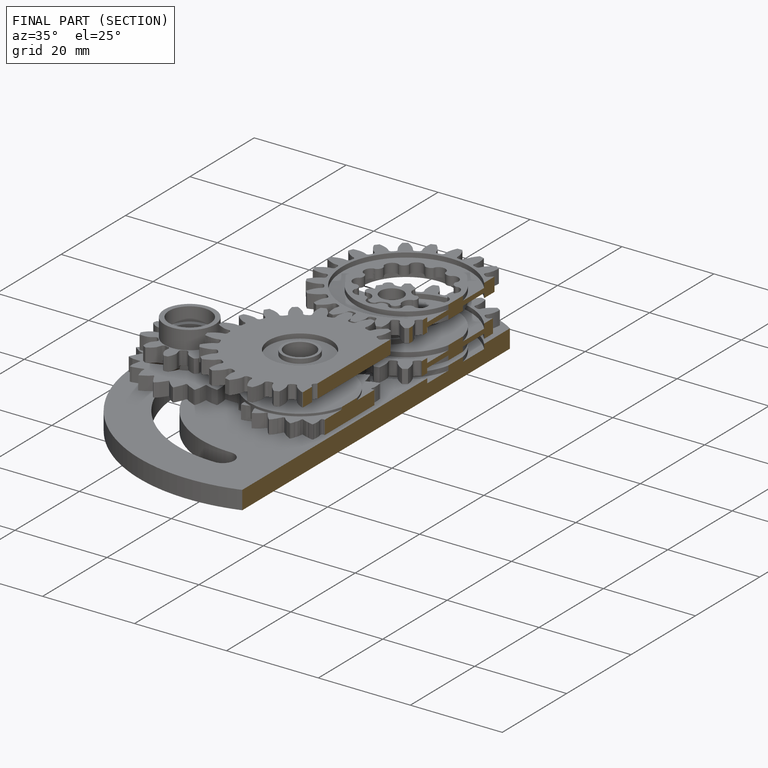
[diagram: finished part — half-section view (interior)]
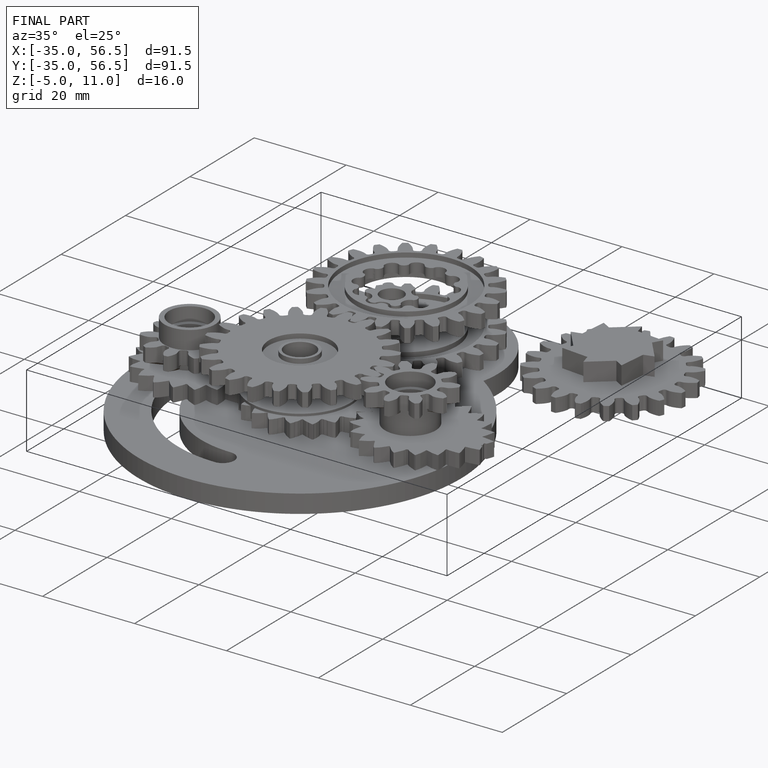
[diagram: finished part — iso view with bounding-box wireframe]
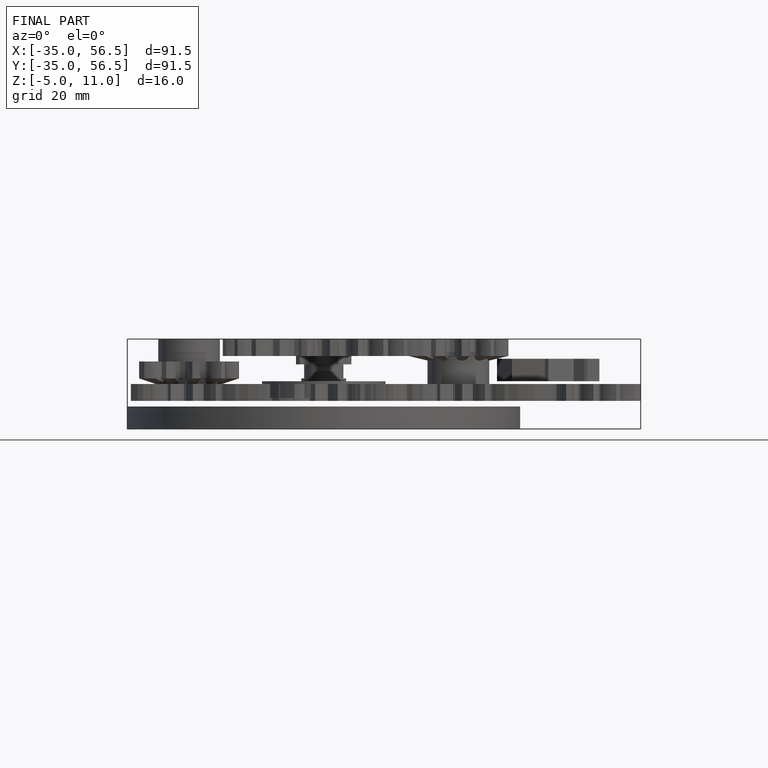
[diagram: finished part — front view with bounding-box wireframe]
